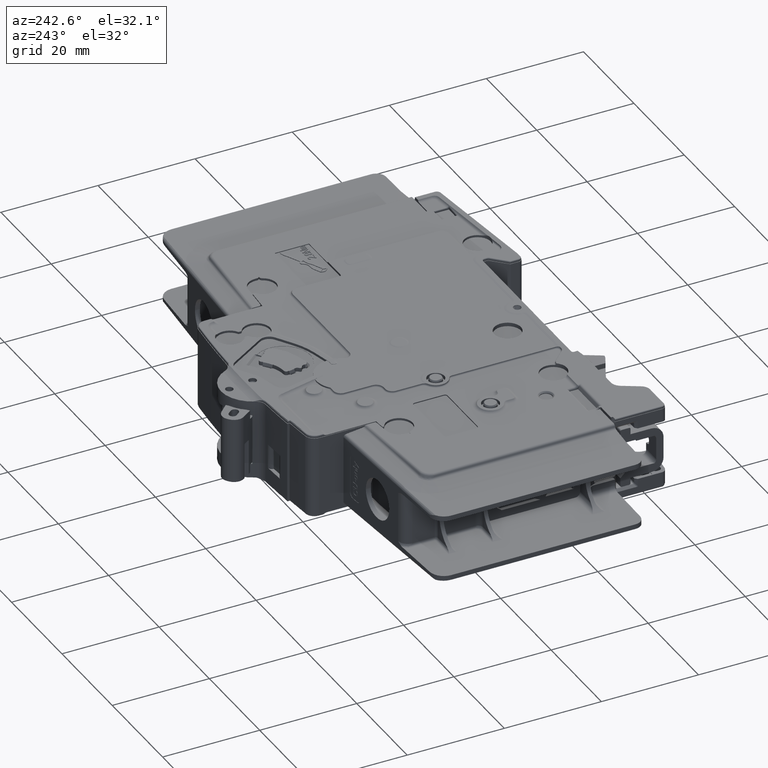
[diagram: clean part render]
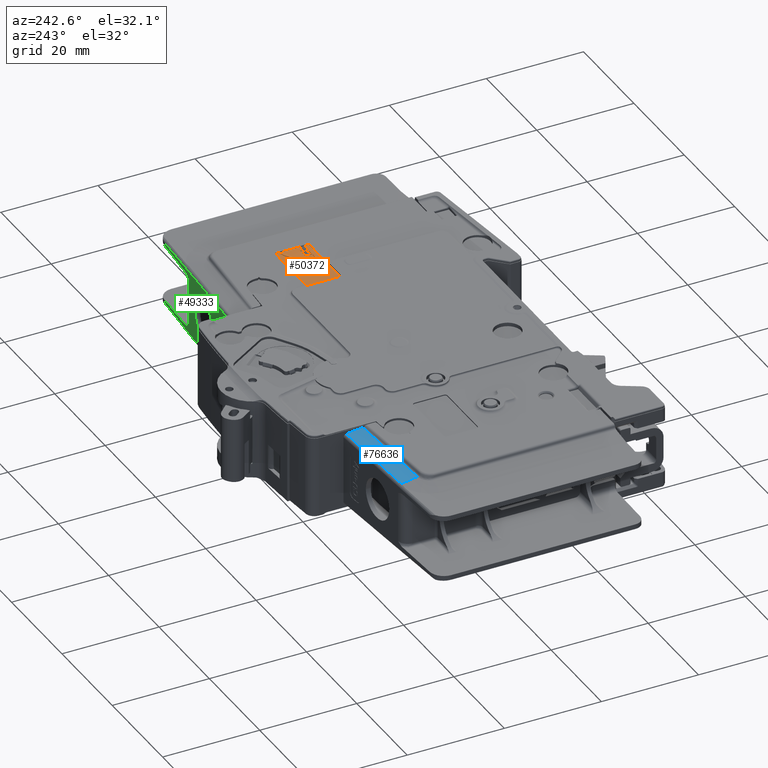
[diagram: same view with three faces highlighted in distinct colors, each labeled with its STEP entity id]
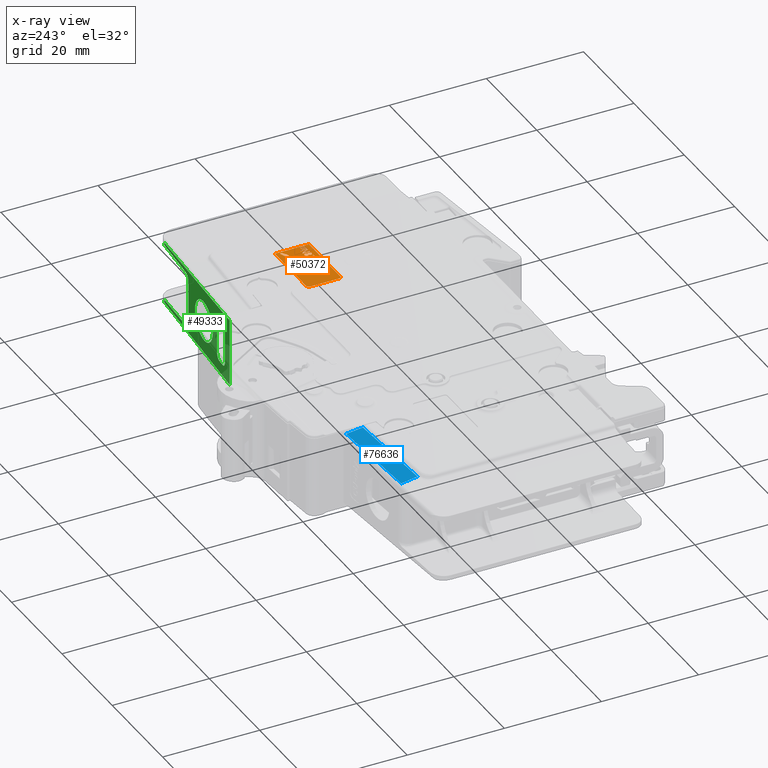
[diagram: x-ray of the same camera — body ghosted, the three highlighted faces saturated]
A machine part, auxiliary view with three faces highlighted in distinct colors.
The next image is the same camera in x-ray (body ghosted, the three faces saturated) — at least one of them is partly hidden behind the body in this view.
Their STEP definitions:

[orange] entity #50372 — the highlighted planar face has unit normal (0, 0, 1).
#2536=DIRECTION('',(1.E0,0.E0,0.E0));
#2537=VECTOR('',#2536,1.25E1);
#2538=CARTESIAN_POINT('',(2.5E1,-3.105E1,8.2E0));
#2539=LINE('',#2538,#2537);
#2540=CARTESIAN_POINT('',(2.5E1,-3.055E1,8.2E0));
#2541=DIRECTION('',(0.E0,0.E0,1.E0));
#2542=DIRECTION('',(-1.E0,0.E0,0.E0));
#2543=AXIS2_PLACEMENT_3D('',#2540,#2541,#2542);
#2545=DIRECTION('',(0.E0,-1.E0,0.E0));
#2546=VECTOR('',#2545,6.05E0);
#2547=CARTESIAN_POINT('',(2.45E1,-2.45E1,8.2E0));
#2548=LINE('',#2547,#2546);
#2549=CARTESIAN_POINT('',(2.5E1,-2.45E1,8.2E0));
#2550=DIRECTION('',(0.E0,0.E0,1.E0));
#2551=DIRECTION('',(0.E0,1.E0,0.E0));
#2552=AXIS2_PLACEMENT_3D('',#2549,#2550,#2551);
#2554=DIRECTION('',(-1.E0,0.E0,0.E0));
#2555=VECTOR('',#2554,1.25E1);
#2556=CARTESIAN_POINT('',(3.75E1,-2.4E1,8.2E0));
#2557=LINE('',#2556,#2555);
#2558=DIRECTION('',(0.E0,1.E0,0.E0));
#2559=VECTOR('',#2558,7.05E0);
#2560=CARTESIAN_POINT('',(3.75E1,-3.105E1,8.2E0));
#2561=LINE('',#2560,#2559);
#2562=DIRECTION('',(-9.061831399953E-1,-4.228854653311E-1,0.E0));
#2563=VECTOR('',#2562,4.204448120739E-1);
#2564=CARTESIAN_POINT('',(2.90320018E1,-2.79701512E1,8.2E0));
#2565=LINE('',#2564,#2563);
#2566=DIRECTION('',(-8.741572761215E-1,-4.856429311786E-1,0.E0));
#2567=VECTOR('',#2566,2.615090055811E-1);
#2568=CARTESIAN_POINT('',(2.86510018E1,-2.81479512E1,8.2E0));
#2569=LINE('',#2568,#2567);
#2570=DIRECTION('',(-9.119215051751E-1,-4.103646773288E-1,0.E0));
#2571=VECTOR('',#2570,5.570654898663E-1);
#2572=CARTESIAN_POINT('',(2.84224018E1,-2.82749512E1,8.2E0));
#2573=LINE('',#2572,#2571);
#2574=DIRECTION('',(-4.472135954999E-1,-8.944271909999E-1,0.E0));
#2575=VECTOR('',#2574,1.135922532570E-1);
#2576=CARTESIAN_POINT('',(2.79144018E1,-2.85035512E1,8.2E0));
#2577=LINE('',#2576,#2575);
#2578=DIRECTION('',(-1.961161351382E-1,-9.805806756909E-1,0.E0));
#2579=VECTOR('',#2578,2.590301912905E-1);
#2580=CARTESIAN_POINT('',(2.78636018E1,-2.86051512E1,8.2E0));
#2581=LINE('',#2580,#2579);
#2582=DIRECTION('',(-1.414213562373E-1,-9.899494936612E-1,0.E0));
#2583=VECTOR('',#2582,3.592102448428E-1);
#2584=CARTESIAN_POINT('',(2.78128018E1,-2.88591512E1,8.2E0));
#2585=LINE('',#2584,#2583);
#2586=DIRECTION('',(0.E0,-1.E0,0.E0));
#2587=VECTOR('',#2586,1.016E-1);
#2588=CARTESIAN_POINT('',(2.77620018E1,-2.92147512E1,8.2E0));
#2589=LINE('',#2588,#2587);
#2590=DIRECTION('',(3.939192985792E-1,-9.191450300181E-1,0.E0));
#2591=VECTOR('',#2590,1.934406368889E-1);
#2592=CARTESIAN_POINT('',(2.77620018E1,-2.93163512E1,8.2E0));
#2593=LINE('',#2592,#2591);
#2594=DIRECTION('',(4.472135954999E-1,-8.94427191E-1,0.E0));
#2595=VECTOR('',#2594,5.679612662851E-2);
#2596=CARTESIAN_POINT('',(2.78382018E1,-2.94941512E1,8.2E0));
#2597=LINE('',#2596,#2595);
#2598=DIRECTION('',(6.507913734560E-1,-7.592566023653E-1,0.E0));
#2599=VECTOR('',#2598,2.341764292152E-1);
#2600=CARTESIAN_POINT('',(2.78636018E1,-2.95449512E1,8.2E0));
#2601=LINE('',#2600,#2599);
#2602=DIRECTION('',(7.474093186837E-1,-6.643638388299E-1,0.E0));
#2603=VECTOR('',#2602,3.058565023013E-1);
#2604=CARTESIAN_POINT('',(2.80160018E1,-2.97227512E1,8.2E0));
#2605=LINE('',#2604,#2603);
#2606=DIRECTION('',(7.071067811865E-1,-7.071067811866E-1,0.E0));
#2607=VECTOR('',#2606,2.514471713899E-1);
#2608=CARTESIAN_POINT('',(2.82446018E1,-2.99259512E1,8.2E0));
#2609=LINE('',#2608,#2607);
#2610=DIRECTION('',(8.E-1,-6.E-1,0.E0));
#2611=VECTOR('',#2610,1.27E-1);
#2612=CARTESIAN_POINT('',(2.84224018E1,-3.01037512E1,8.2E0));
#2613=LINE('',#2612,#2611);
#2614=DIRECTION('',(9.805806756909E-1,1.961161351381E-1,0.E0));
#2615=VECTOR('',#2614,1.295150956453E-1);
#2616=CARTESIAN_POINT('',(2.85240018E1,-3.01799512E1,8.2E0));
#2617=LINE('',#2616,#2615);
#2618=DIRECTION('',(9.119215051751E-1,4.103646773288E-1,0.E0));
#2619=VECTOR('',#2618,5.570654898663E-1);
#2620=CARTESIAN_POINT('',(2.86510018E1,-3.01545512E1,8.2E0));
#2621=LINE('',#2620,#2619);
#2622=DIRECTION('',(8.944271909999E-1,4.472135955E-1,0.E0));
#2623=VECTOR('',#2622,2.839806331425E-1);
#2624=CARTESIAN_POINT('',(2.91590018E1,-2.99259512E1,8.2E0));
#2625=LINE('',#2624,#2623);
#2626=DIRECTION('',(9.138115486203E-1,4.061384660534E-1,0.E0));
#2627=VECTOR('',#2626,2.501609881656E-1);
#2628=CARTESIAN_POINT('',(2.94130018E1,-2.97989512E1,8.2E0));
#2629=LINE('',#2628,#2627);
#2630=DIRECTION('',(8.944271909999E-1,4.472135954999E-1,0.E0));
#2631=VECTOR('',#2630,3.407767597710E-1);
#2632=CARTESIAN_POINT('',(2.96416018E1,-2.96973512E1,8.2E0));
#2633=LINE('',#2632,#2631);
#2634=DIRECTION('',(8.741572761215E-1,4.856429311786E-1,0.E0));
#2635=VECTOR('',#2634,2.615090055811E-1);
#2636=CARTESIAN_POINT('',(2.99464018E1,-2.95449512E1,8.2E0));
#2637=LINE('',#2636,#2635);
#2638=DIRECTION('',(8.192319205191E-1,5.734623443633E-1,0.E0));
#2639=VECTOR('',#2638,3.100465126396E-1);
#2640=CARTESIAN_POINT('',(3.01750018E1,-2.94179512E1,8.2E0));
#2641=LINE('',#2640,#2639);
#2642=DIRECTION('',(7.682212795974E-1,6.401843996645E-1,0.E0));
#2643=VECTOR('',#2642,1.983803417680E-1);
#2644=CARTESIAN_POINT('',(3.04290018E1,-2.92401512E1,8.2E0));
#2645=LINE('',#2644,#2643);
#2646=DIRECTION('',(6.643638388299E-1,7.474093186837E-1,0.E0));
#2647=VECTOR('',#2646,3.058565023013E-1);
#2648=CARTESIAN_POINT('',(3.10640018E1,-2.86305512E1,8.2E0));
#2649=LINE('',#2648,#2647);
#2650=DIRECTION('',(7.682212795974E-1,6.401843996645E-1,0.E0));
#2651=VECTOR('',#2650,1.983803417680E-1);
#2652=CARTESIAN_POINT('',(3.12672018E1,-2.84019512E1,8.2E0));
#2653=LINE('',#2652,#2651);
#2654=DIRECTION('',(8.137334712067E-1,5.812381937191E-1,0.E0));
#2655=VECTOR('',#2654,2.184990617829E-1);
#2656=CARTESIAN_POINT('',(3.14196018E1,-2.82749512E1,8.2E0));
#2657=LINE('',#2656,#2655);
#2658=DIRECTION('',(8.944271909999E-1,4.472135955E-1,0.E0));
#2659=VECTOR('',#2658,1.703883798855E-1);
#2660=CARTESIAN_POINT('',(3.15974018E1,-2.81479512E1,8.2E0));
#2661=LINE('',#2660,#2659);
#2662=DIRECTION('',(9.486832980505E-1,3.162277660168E-1,0.E0));
#2663=VECTOR('',#2662,1.606437051366E-1);
#2664=CARTESIAN_POINT('',(3.17498018E1,-2.80717512E1,8.2E0));
#2665=LINE('',#2664,#2663);
#2666=DIRECTION('',(9.863939238321E-1,1.643989873054E-1,0.E0));
#2667=VECTOR('',#2666,1.545021682696E-1);
#2668=CARTESIAN_POINT('',(3.19022018E1,-2.80209512E1,8.2E0));
#2669=LINE('',#2668,#2667);
#2670=DIRECTION('',(9.899494936612E-1,1.414213562373E-1,0.E0));
#2671=VECTOR('',#2670,1.796051224214E-1);
#2672=CARTESIAN_POINT('',(3.20546018E1,-2.79955512E1,8.2E0));
#2673=LINE('',#2672,#2671);
#2674=DIRECTION('',(9.761870601839E-1,-2.169304578187E-1,0.E0));
#2675=VECTOR('',#2674,2.341764292152E-1);
#2676=CARTESIAN_POINT('',(3.22324018E1,-2.79701512E1,8.2E0));
#2677=LINE('',#2676,#2675);
#2678=DIRECTION('',(1.E0,0.E0,0.E0));
#2679=VECTOR('',#2678,7.62E-2);
#2680=CARTESIAN_POINT('',(3.24610018E1,-2.80209512E1,8.2E0));
#2681=LINE('',#2680,#2679);
#2682=DIRECTION('',(9.950371902100E-1,9.950371902102E-2,0.E0));
#2683=VECTOR('',#2682,2.552668407765E-1);
#2684=CARTESIAN_POINT('',(3.25372018E1,-2.80209512E1,8.2E0));
#2685=LINE('',#2684,#2683);
#2686=DIRECTION('',(9.363291775690E-1,3.511234415884E-1,0.E0));
#2687=VECTOR('',#2686,2.170176951311E-1);
#2688=CARTESIAN_POINT('',(3.27912018E1,-2.79955512E1,8.2E0));
#2689=LINE('',#2688,#2687);
#2690=DIRECTION('',(4.472135955E-1,8.944271909999E-1,0.E0));
#2691=VECTOR('',#2690,5.679612662849E-2);
#2692=CARTESIAN_POINT('',(3.29944018E1,-2.79193512E1,8.2E0));
#2693=LINE('',#2692,#2691);
#2694=DIRECTION('',(2.747211278974E-1,9.615239476408E-1,0.E0));
#2695=VECTOR('',#2694,1.849147911877E-1);
#2696=CARTESIAN_POINT('',(3.30198018E1,-2.78685512E1,8.2E0));
#2697=LINE('',#2696,#2695);
#2698=DIRECTION('',(9.950371902102E-2,9.950371902100E-1,0.E0));
#2699=VECTOR('',#2698,2.552668407765E-1);
#2700=CARTESIAN_POINT('',(3.30706018E1,-2.76907512E1,8.2E0));
#2701=LINE('',#2700,#2699);
#2702=DIRECTION('',(-3.162277660168E-1,9.486832980505E-1,0.E0));
#2703=VECTOR('',#2702,1.606437051366E-1);
#2704=CARTESIAN_POINT('',(3.30960018E1,-2.74367512E1,8.2E0));
#2705=LINE('',#2704,#2703);
#2706=DIRECTION('',(8.977894101426E-1,4.404249936548E-1,0.E0));
#2707=VECTOR('',#2706,2.998921539487E0);
#2708=CARTESIAN_POINT('',(3.30452018E1,-2.72843512E1,8.2E0));
#2709=LINE('',#2708,#2707);
#2710=DIRECTION('',(9.647638212377E-1,2.631174057921E-1,0.E0));
#2711=VECTOR('',#2710,5.792091159504E-1);
#2712=CARTESIAN_POINT('',(3.57376018E1,-2.59635512E1,8.2E0));
#2713=LINE('',#2712,#2711);
#2714=DIRECTION('',(8.181916968607E-1,5.749455167129E-1,0.E0));
#2715=VECTOR('',#2714,1.148630575947E0);
#2716=CARTESIAN_POINT('',(3.62964018E1,-2.58111512E1,8.2E0));
#2717=LINE('',#2716,#2715);
#2718=DIRECTION('',(-4.472135955E-1,8.944271909999E-1,1.042534027610E-14));
#2719=VECTOR('',#2718,3.407767597710E-1);
#2720=CARTESIAN_POINT('',(3.72362018E1,-2.51507512E1,8.2E0));
#2721=LINE('',#2720,#2719);
#2722=DIRECTION('',(-9.486832980505E-1,-3.162277660168E-1,0.E0));
#2723=VECTOR('',#2722,1.124505935956E0);
#2724=CARTESIAN_POINT('',(3.70838018E1,-2.48459512E1,8.2E0));
#2725=LINE('',#2724,#2723);
#2726=DIRECTION('',(-8.253072612498E-1,-5.646839155920E-1,0.E0));
#2727=VECTOR('',#2726,5.847519132076E-1);
#2728=CARTESIAN_POINT('',(3.60170018E1,-2.52015512E1,8.2E0));
#2729=LINE('',#2728,#2727);
#2730=DIRECTION('',(-9.011247017590E-1,-4.335599980161E-1,0.E0));
#2731=VECTOR('',#2730,2.987821768446E0);
#2732=CARTESIAN_POINT('',(3.55344018E1,-2.55317512E1,8.2E0));
#2733=LINE('',#2732,#2731);
#2734=DIRECTION('',(-8.E-1,6.E-1,0.E0));
#2735=VECTOR('',#2734,2.54E-1);
#2736=CARTESIAN_POINT('',(3.28420018E1,-2.68271512E1,8.2E0));
#2737=LINE('',#2736,#2735);
#2738=DIRECTION('',(-7.071067811865E-1,7.071067811866E-1,0.E0));
#2739=VECTOR('',#2738,1.436840979371E-1);
#2740=CARTESIAN_POINT('',(3.26388018E1,-2.66747512E1,8.2E0));
#2741=LINE('',#2740,#2739);
#2742=DIRECTION('',(-8.944271909999E-1,4.472135955E-1,0.E0));
#2743=VECTOR('',#2742,5.679612662850E-2);
#2744=CARTESIAN_POINT('',(3.25372018E1,-2.65731512E1,8.2E0));
#2745=LINE('',#2744,#2743);
#2746=DIRECTION('',(-9.863939238321E-1,-1.643989873054E-1,0.E0));
#2747=VECTOR('',#2746,1.545021682696E-1);
#2748=CARTESIAN_POINT('',(3.24864018E1,-2.65477512E1,8.2E0));
#2749=LINE('',#2748,#2747);
#2750=DIRECTION('',(-1.E0,0.E0,0.E0));
#2751=VECTOR('',#2750,1.27E-1);
#2752=CARTESIAN_POINT('',(3.23340018E1,-2.65731512E1,8.2E0));
#2753=LINE('',#2752,#2751);
#2754=DIRECTION('',(-9.138115486203E-1,-4.061384660534E-1,0.E0));
#2755=VECTOR('',#2754,2.501609881656E-1);
#2756=CARTESIAN_POINT('',(3.22070018E1,-2.65731512E1,8.2E0));
#2757=LINE('',#2756,#2755);
#2758=DIRECTION('',(-3.939192985792E-1,-9.191450300181E-1,0.E0));
#2759=VECTOR('',#2758,1.934406368889E-1);
#2760=CARTESIAN_POINT('',(3.19784018E1,-2.66747512E1,8.2E0));
#2761=LINE('',#2760,#2759);
#2762=DIRECTION('',(-6.246950475544E-1,-7.808688094430E-1,0.E0));
#2763=VECTOR('',#2762,1.626393556308E-1);
#2764=CARTESIAN_POINT('',(3.19022018E1,-2.68525512E1,8.2E0));
#2765=LINE('',#2764,#2763);
#2766=DIRECTION('',(-5.547001962252E-1,-8.320502943378E-1,0.E0));
#2767=VECTOR('',#2766,1.831620047936E-1);
#2768=CARTESIAN_POINT('',(3.18006018E1,-2.69795512E1,8.2E0));
#2769=LINE('',#2768,#2767);
#2770=DIRECTION('',(-7.071067811866E-1,-7.071067811865E-1,0.E0));
#2771=VECTOR('',#2770,2.514471713899E-1);
#2772=CARTESIAN_POINT('',(3.16990018E1,-2.71319512E1,8.2E0));
#2773=LINE('',#2772,#2771);
#2774=DIRECTION('',(-8.320502943378E-1,-5.547001962252E-1,0.E0));
#2775=VECTOR('',#2774,1.831620047936E-1);
#2776=CARTESIAN_POINT('',(3.15212018E1,-2.73097512E1,8.2E0));
#2777=LINE('',#2776,#2775);
#2778=DIRECTION('',(-8.944271909999E-1,-4.472135954999E-1,0.E0));
#2779=VECTOR('',#2778,1.703883798855E-1);
#2780=CARTESIAN_POINT('',(3.13688018E1,-2.74113512E1,8.2E0));
#2781=LINE('',#2780,#2779);
#2782=DIRECTION('',(-9.486832980505E-1,-3.162277660170E-1,0.E0));
#2783=VECTOR('',#2782,8.032185256828E-2);
#2784=CARTESIAN_POINT('',(3.12164018E1,-2.74875512E1,8.2E0));
#2785=LINE('',#2784,#2783);
#2786=DIRECTION('',(-9.615239476408E-1,-2.747211278974E-1,0.E0));
#2787=VECTOR('',#2786,1.849147911877E-1);
#2788=CARTESIAN_POINT('',(3.11402018E1,-2.75129512E1,8.2E0));
#2789=LINE('',#2788,#2787);
#2790=DIRECTION('',(-9.863939238321E-1,-1.643989873054E-1,0.E0));
#2791=VECTOR('',#2790,1.545021682696E-1);
#2792=CARTESIAN_POINT('',(3.09624018E1,-2.75637512E1,8.2E0));
#2793=LINE('',#2792,#2791);
#2794=DIRECTION('',(-9.980525784829E-1,-6.237828615517E-2,0.E0));
#2795=VECTOR('',#2794,4.071929763638E-1);
#2796=CARTESIAN_POINT('',(3.08100018E1,-2.75891512E1,8.2E0));
#2797=LINE('',#2796,#2795);
#2798=DIRECTION('',(-1.E0,0.E0,0.E0));
#2799=VECTOR('',#2798,1.524E-1);
#2800=CARTESIAN_POINT('',(3.04036018E1,-2.76145512E1,8.2E0));
#2801=LINE('',#2800,#2799);
#2802=DIRECTION('',(-9.863939238321E-1,-1.643989873054E-1,0.E0));
#2803=VECTOR('',#2802,3.090043365392E-1);
#2804=CARTESIAN_POINT('',(3.02512018E1,-2.76145512E1,8.2E0));
#2805=LINE('',#2804,#2803);
#2806=DIRECTION('',(-9.838699100999E-1,-1.788854382E-1,0.E0));
#2807=VECTOR('',#2806,2.839806331425E-1);
#2808=CARTESIAN_POINT('',(2.99464018E1,-2.76653512E1,8.2E0));
#2809=LINE('',#2808,#2807);
#2810=DIRECTION('',(-9.079593845005E-1,-4.190581774617E-1,0.E0));
#2811=VECTOR('',#2810,3.636726550074E-1);
#2812=CARTESIAN_POINT('',(2.93622018E1,-2.78177512E1,8.2E0));
#2813=LINE('',#2812,#2811);
#2814=DIRECTION('',(0.E0,-1.E0,0.E0));
#2815=VECTOR('',#2814,1.595744714141E-1);
#2816=CARTESIAN_POINT('',(3.27E1,-2.994042552859E1,8.2E0));
#2817=LINE('',#2816,#2815);
#2818=DIRECTION('',(1.E0,0.E0,0.E0));
#2819=VECTOR('',#2818,9.E-1);
#2820=CARTESIAN_POINT('',(3.27E1,-3.01E1,8.2E0));
#2821=LINE('',#2820,#2819);
#2822=DIRECTION('',(0.E0,1.E0,0.E0));
#2823=VECTOR('',#2822,1.595744714141E-1);
#2824=CARTESIAN_POINT('',(3.36E1,-3.01E1,8.2E0));
#2825=LINE('',#2824,#2823);
#2826=DIRECTION('',(-1.E0,0.E0,0.E0));
#2827=VECTOR('',#2826,6.999999940395E-1);
#2828=CARTESIAN_POINT('',(3.36E1,-2.994042552859E1,8.2E0));
#2829=LINE('',#2828,#2827);
#2830=DIRECTION('',(6.648905181809E-1,7.469408268619E-1,0.E0));
#2831=VECTOR('',#2830,9.400043720724E-1);
#2832=CARTESIAN_POINT('',(3.290000000596E1,-2.994042552859E1,8.2E0));
#2833=LINE('',#2832,#2831);
#2834=DIRECTION('',(4.629027827006E-1,8.864090555540E-1,0.E0));
#2835=VECTOR('',#2834,1.080140921818E-1);
#2836=CARTESIAN_POINT('',(3.3525E1,-2.923829788566E1,8.2E0));
#2837=LINE('',#2836,#2835);
#2838=DIRECTION('',(1.921826769043E-1,9.813591690599E-1,0.E0));
#2839=VECTOR('',#2838,1.300844413286E-1);
#2840=CARTESIAN_POINT('',(3.357500002384E1,-2.914255321622E1,8.2E0));
#2841=LINE('',#2840,#2839);
#2842=DIRECTION('',(0.E0,1.E0,0.E0));
#2843=VECTOR('',#2842,6.382986903191E-2);
#2844=CARTESIAN_POINT('',(3.36E1,-2.901489365697E1,8.2E0));
#2845=LINE('',#2844,#2843);
#2846=DIRECTION('',(-1.921826769043E-1,9.813591690599E-1,0.E0));
#2847=VECTOR('',#2846,1.300844413286E-1);
#2848=CARTESIAN_POINT('',(3.36E1,-2.895106378794E1,8.2E0));
#2849=LINE('',#2848,#2847);
#2850=DIRECTION('',(-6.166622030510E-1,7.872278750960E-1,0.E0));
#2851=VECTOR('',#2850,1.621634132738E-1);
#2852=CARTESIAN_POINT('',(3.357500002384E1,-2.882340422869E1,8.2E0));
#2853=LINE('',#2852,#2851);
#2854=DIRECTION('',(-8.429221804892E-1,5.380354984937E-1,0.E0));
#2855=VECTOR('',#2854,1.186348852513E-1);
#2856=CARTESIAN_POINT('',(3.347499997616E1,-2.869574466944E1,8.2E0));
#2857=LINE('',#2856,#2855);
#2858=DIRECTION('',(-9.781059340346E-1,2.081076207309E-1,0.E0));
#2859=VECTOR('',#2858,1.533576218900E-1);
#2860=CARTESIAN_POINT('',(3.3375E1,-2.863191488981E1,8.2E0));
#2861=LINE('',#2860,#2859);
#2862=DIRECTION('',(-1.E0,0.E0,0.E0));
#2863=VECTOR('',#2862,1.000000119209E-1);
#2864=CARTESIAN_POINT('',(3.3225E1,-2.86E1,8.2E0));
#2865=LINE('',#2864,#2863);
#2866=DIRECTION('',(-9.837740858106E-1,-1.794116721050E-1,0.E0));
#2867=VECTOR('',#2866,1.778863628994E-1);
#2868=CARTESIAN_POINT('',(3.312499998808E1,-2.86E1,8.2E0));
#2869=LINE('',#2868,#2867);
#2870=DIRECTION('',(-8.429222241218E-1,-5.380354301360E-1,0.E0));
#2871=VECTOR('',#2870,1.186349003240E-1);
#2872=CARTESIAN_POINT('',(3.294999999404E1,-2.863191488981E1,8.2E0));
#2873=LINE('',#2872,#2871);
#2874=DIRECTION('',(-6.166620151270E-1,-7.872280223033E-1,0.E0));
#2875=VECTOR('',#2874,1.621633829502E-1);
#2876=CARTESIAN_POINT('',(3.285E1,-2.869574466944E1,8.2E0));
#2877=LINE('',#2876,#2875);
#2878=DIRECTION('',(-1.921828589309E-1,-9.813591334130E-1,0.E0));
#2879=VECTOR('',#2878,1.300844460538E-1);
#2880=CARTESIAN_POINT('',(3.275000000149E1,-2.882340422869E1,8.2E0));
#2881=LINE('',#2880,#2879);
#2882=DIRECTION('',(1.E0,0.E0,0.E0));
#2883=VECTOR('',#2882,1.249999992549E-1);
#2884=CARTESIAN_POINT('',(3.272500000075E1,-2.895106378794E1,8.2E0));
#2885=LINE('',#2884,#2883);
#2886=DIRECTION('',(4.629026526271E-1,8.864091234813E-1,0.E0));
#2887=VECTOR('',#2886,1.080140839045E-1);
#2888=CARTESIAN_POINT('',(3.285E1,-2.895106378794E1,8.2E0));
#2889=LINE('',#2888,#2887);
#2890=DIRECTION('',(7.615394278297E-1,6.481185847210E-1,0.E0));
#2891=VECTOR('',#2890,9.848472352080E-2);
#2892=CARTESIAN_POINT('',(3.290000000596E1,-2.885531911850E1,8.2E0));
#2893=LINE('',#2892,#2891);
#2894=DIRECTION('',(9.689177205206E-1,2.473832065059E-1,0.E0));
#2895=VECTOR('',#2894,1.290099286174E-1);
#2896=CARTESIAN_POINT('',(3.297500000596E1,-2.879148933887E1,8.2E0));
#2897=LINE('',#2896,#2895);
#2898=DIRECTION('',(1.E0,0.E0,0.E0));
#2899=VECTOR('',#2898,9.999997615814E-2);
#2900=CARTESIAN_POINT('',(3.310000001192E1,-2.875957444906E1,8.2E0));
#2901=LINE('',#2900,#2899);
#2902=DIRECTION('',(9.689177120382E-1,-2.473832397287E-1,0.E0));
#2903=VECTOR('',#2902,1.290099112918E-1);
#2904=CARTESIAN_POINT('',(3.319999998808E1,-2.875957444906E1,8.2E0));
#2905=LINE('',#2904,#2903);
#2906=DIRECTION('',(7.615394278298E-1,-6.481185847210E-1,0.E0));
#2907=VECTOR('',#2906,9.848472352080E-2);
#2908=CARTESIAN_POINT('',(3.332499997616E1,-2.879148933887E1,8.2E0));
#2909=LINE('',#2908,#2907);
#2910=DIRECTION('',(4.629027827007E-1,-8.864090555539E-1,0.E0));
#2911=VECTOR('',#2910,1.080140921818E-1);
#2912=CARTESIAN_POINT('',(3.339999997616E1,-2.885531911850E1,8.2E0));
#2913=LINE('',#2912,#2911);
#2914=DIRECTION('',(0.E0,-1.E0,0.E0));
#2915=VECTOR('',#2914,6.382986903191E-2);
#2916=CARTESIAN_POINT('',(3.345E1,-2.895106378794E1,8.2E0));
#2917=LINE('',#2916,#2915);
#2918=DIRECTION('',(-3.646920866794E-1,-9.311281769517E-1,0.E0));
#2919=VECTOR('',#2918,1.371020257037E-1);
#2920=CARTESIAN_POINT('',(3.345E1,-2.901489365697E1,8.2E0));
#2921=LINE('',#2920,#2919);
#2922=DIRECTION('',(-6.594974406342E-1,-7.517068084014E-1,0.E0));
#2923=VECTOR('',#2922,1.061414242161E0);
#2924=CARTESIAN_POINT('',(3.339999997616E1,-2.914255321622E1,8.2E0));
#2925=LINE('',#2924,#2923);
#2926=DIRECTION('',(0.E0,1.E0,0.E0));
#2927=VECTOR('',#2926,1.595744714141E-1);
#2928=CARTESIAN_POINT('',(3.392500004768E1,-3.01E1,8.2E0));
#2929=LINE('',#2928,#2927);
#2930=DIRECTION('',(-1.E0,0.E0,0.E0));
#2931=VECTOR('',#2930,1.250000238419E-1);
#2932=CARTESIAN_POINT('',(3.392500004768E1,-2.994042552859E1,8.2E0));
#2933=LINE('',#2932,#2931);
#2934=DIRECTION('',(0.E0,-1.E0,0.E0));
#2935=VECTOR('',#2934,1.595744714141E-1);
#2936=CARTESIAN_POINT('',(3.380000002384E1,-2.994042552859E1,8.2E0));
#2937=LINE('',#2936,#2935);
#2938=DIRECTION('',(1.E0,0.E0,0.E0));
#2939=VECTOR('',#2938,1.250000238419E-1);
#2940=CARTESIAN_POINT('',(3.380000002384E1,-3.01E1,8.2E0));
#2941=LINE('',#2940,#2939);
#2942=DIRECTION('',(-8.429220059588E-1,-5.380357719245E-1,0.E0));
#2943=VECTOR('',#2942,5.931741248042E-2);
#2944=CARTESIAN_POINT('',(3.432499995232E1,-2.933404255509E1,8.2E0));
#2945=LINE('',#2944,#2943);
#2946=DIRECTION('',(-7.223082161079E-1,-6.915712840648E-1,0.E0));
#2947=VECTOR('',#2946,1.384451200383E-1);
#2948=CARTESIAN_POINT('',(3.4275E1,-2.936595744491E1,8.2E0));
#2949=LINE('',#2948,#2947);
#2950=DIRECTION('',(-2.989990665180E-1,-9.542534035681E-1,0.E0));
#2951=VECTOR('',#2950,1.672244428672E-1);
#2952=CARTESIAN_POINT('',(3.417499995232E1,-2.946170211434E1,8.2E0));
#2953=LINE('',#2952,#2951);
#2954=DIRECTION('',(0.E0,-1.E0,0.E0));
#2955=VECTOR('',#2954,9.574466943741E-2);
#2956=CARTESIAN_POINT('',(3.4125E1,-2.962127660811E1,8.2E0));
#2957=LINE('',#2956,#2955);
#2958=DIRECTION('',(2.989991046548E-1,-9.542533916186E-1,0.E0));
#2959=VECTOR('',#2958,1.672244215380E-1);
#2960=CARTESIAN_POINT('',(3.4125E1,-2.971702127755E1,8.2E0));
#2961=LINE('',#2960,#2959);
#2962=DIRECTION('',(6.166619762135E-1,-7.872280527855E-1,0.E0));
#2963=VECTOR('',#2962,1.216225466998E-1);
#2964=CARTESIAN_POINT('',(3.417499995232E1,-2.987659574896E1,8.2E0));
#2965=LINE('',#2964,#2963);
#2966=DIRECTION('',(7.938783792516E-1,-6.080765732676E-1,0.E0));
#2967=VECTOR('',#2966,1.574549687136E-1);
#2968=CARTESIAN_POINT('',(3.424999995232E1,-2.997234042957E1,8.2E0));
#2969=LINE('',#2968,#2967);
#2970=DIRECTION('',(9.689176898823E-1,-2.473833265058E-1,0.E0));
#2971=VECTOR('',#2970,1.290098773317E-1);
#2972=CARTESIAN_POINT('',(3.437500004768E1,-3.006808510739E1,8.2E0));
#2973=LINE('',#2972,#2971);
#2974=DIRECTION('',(1.E0,0.E0,0.E0));
#2975=VECTOR('',#2974,1.5E-1);
#2976=CARTESIAN_POINT('',(3.45E1,-3.01E1,8.2E0));
#2977=LINE('',#2976,#2975);
#2978=DIRECTION('',(9.689176898823E-1,2.473833265058E-1,0.E0));
#2979=VECTOR('',#2978,1.290098773317E-1);
#2980=CARTESIAN_POINT('',(3.465E1,-3.01E1,8.2E0));
#2981=LINE('',#2980,#2979);
#2982=DIRECTION('',(7.938783792516E-1,6.080765732676E-1,0.E0));
#2983=VECTOR('',#2982,1.574549687136E-1);
#2984=CARTESIAN_POINT('',(3.477499995232E1,-3.006808510739E1,8.2E0));
#2985=LINE('',#2984,#2983);
#2986=DIRECTION('',(6.166619762135E-1,7.872280527855E-1,0.E0));
#2987=VECTOR('',#2986,1.216225466998E-1);
#2988=CARTESIAN_POINT('',(3.490000004768E1,-2.997234042957E1,8.2E0));
#2989=LINE('',#2988,#2987);
#2990=DIRECTION('',(2.989991046548E-1,9.542533916186E-1,0.E0));
#2991=VECTOR('',#2990,1.672244215380E-1);
#2992=CARTESIAN_POINT('',(3.497500004768E1,-2.987659574896E1,8.2E0));
#2993=LINE('',#2992,#2991);
#2994=DIRECTION('',(0.E0,1.E0,0.E0));
#2995=VECTOR('',#2994,9.574466943741E-2);
#2996=CARTESIAN_POINT('',(3.5025E1,-2.971702127755E1,8.2E0));
#2997=LINE('',#2996,#2995);
#2998=DIRECTION('',(-2.989990665180E-1,9.542534035681E-1,0.E0));
#2999=VECTOR('',#2998,1.672244428672E-1);
#3000=CARTESIAN_POINT('',(3.5025E1,-2.962127660811E1,8.2E0));
#3001=LINE('',#3000,#2999);
#3002=DIRECTION('',(-7.223082161079E-1,6.915712840648E-1,0.E0));
#3003=VECTOR('',#3002,1.384451200383E-1);
#3004=CARTESIAN_POINT('',(3.497500004768E1,-2.946170211434E1,8.2E0));
#3005=LINE('',#3004,#3003);
#3006=DIRECTION('',(-8.429220059588E-1,5.380357719245E-1,0.E0));
#3007=VECTOR('',#3006,5.931741248042E-2);
#3008=CARTESIAN_POINT('',(3.4875E1,-2.936595744491E1,8.2E0));
#3009=LINE('',#3008,#3007);
#3010=DIRECTION('',(8.429220059588E-1,5.380357719245E-1,0.E0));
#3011=VECTOR('',#3010,5.931741248042E-2);
#3012=CARTESIAN_POINT('',(3.482500004768E1,-2.933404255509E1,8.2E0));
#3013=LINE('',#3012,#3011);
#3014=DIRECTION('',(6.166620208217E-1,7.872280178424E-1,0.E0));
#3015=VECTOR('',#3014,1.216225379018E-1);
#3016=CARTESIAN_POINT('',(3.4875E1,-2.930212766528E1,8.2E0));
#3017=LINE('',#3016,#3015);
#3018=DIRECTION('',(3.646916343690E-1,9.311283541066E-1,0.E0));
#3019=VECTOR('',#3018,1.371019996189E-1);
#3020=CARTESIAN_POINT('',(3.495E1,-2.920638299584E1,8.2E0));
#3021=LINE('',#3020,#3019);
#3022=DIRECTION('',(0.E0,1.E0,0.E0));
#3023=VECTOR('',#3022,9.574466943741E-2);
#3024=CARTESIAN_POINT('',(3.499999995232E1,-2.907872343659E1,8.2E0));
#3025=LINE('',#3024,#3023);
#3026=DIRECTION('',(-2.989989902442E-1,9.542534274672E-1,0.E0));
#3027=VECTOR('',#3026,1.672244855257E-1);
#3028=CARTESIAN_POINT('',(3.499999995232E1,-2.898297876716E1,8.2E0));
#3029=LINE('',#3028,#3027);
#3030=DIRECTION('',(-6.166620208217E-1,7.872280178424E-1,0.E0));
#3031=VECTOR('',#3030,1.216225379018E-1);
#3032=CARTESIAN_POINT('',(3.495E1,-2.882340422869E1,8.2E0));
#3033=LINE('',#3032,#3031);
#3034=DIRECTION('',(-7.938780690170E-1,6.080769782961E-1,0.E0));
#3035=VECTOR('',#3034,1.574548500515E-1);
#3036=CARTESIAN_POINT('',(3.4875E1,-2.872765955925E1,8.2E0));
#3037=LINE('',#3036,#3035);
#3038=DIRECTION('',(-9.689177629325E-1,2.473830403924E-1,0.E0));
#3039=VECTOR('',#3038,1.290100152454E-1);
#3040=CARTESIAN_POINT('',(3.475000004768E1,-2.863191488981E1,8.2E0));
#3041=LINE('',#3040,#3039);
#3042=DIRECTION('',(-1.E0,0.E0,0.E0));
#3043=VECTOR('',#3042,9.999990463257E-2);
#3044=CARTESIAN_POINT('',(3.462499995232E1,-2.86E1,8.2E0));
#3045=LINE('',#3044,#3043);
#3046=DIRECTION('',(-9.689177629325E-1,-2.473830403924E-1,0.E0));
#3047=VECTOR('',#3046,1.290100152454E-1);
#3048=CARTESIAN_POINT('',(3.452500004768E1,-2.86E1,8.2E0));
#3049=LINE('',#3048,#3047);
#3050=DIRECTION('',(-7.938780690170E-1,-6.080769782962E-1,0.E0));
#3051=VECTOR('',#3050,1.574548500515E-1);
#3052=CARTESIAN_POINT('',(3.439999995232E1,-2.863191488981E1,8.2E0));
#3053=LINE('',#3052,#3051);
#3054=DIRECTION('',(-6.166620208218E-1,-7.872280178424E-1,0.E0));
#3055=VECTOR('',#3054,1.216225379018E-1);
#3056=CARTESIAN_POINT('',(3.4275E1,-2.872765955925E1,8.2E0));
#3057=LINE('',#3056,#3055);
#3058=DIRECTION('',(-2.989989902442E-1,-9.542534274672E-1,0.E0));
#3059=VECTOR('',#3058,1.672244855257E-1);
#3060=CARTESIAN_POINT('',(3.42E1,-2.882340422869E1,8.2E0));
#3061=LINE('',#3060,#3059);
#3062=DIRECTION('',(0.E0,-1.E0,0.E0));
#3063=VECTOR('',#3062,9.574466943741E-2);
#3064=CARTESIAN_POINT('',(3.415000004768E1,-2.898297876716E1,8.2E0));
#3065=LINE('',#3064,#3063);
#3066=DIRECTION('',(3.646916343690E-1,-9.311283541066E-1,0.E0));
#3067=VECTOR('',#3066,1.371019996189E-1);
#3068=CARTESIAN_POINT('',(3.415000004768E1,-2.907872343659E1,8.2E0));
#3069=LINE('',#3068,#3067);
#3070=DIRECTION('',(6.166620208218E-1,-7.872280178424E-1,0.E0));
#3071=VECTOR('',#3070,1.216225379018E-1);
#3072=CARTESIAN_POINT('',(3.42E1,-2.920638299584E1,8.2E0));
#3073=LINE('',#3072,#3071);
#3074=DIRECTION('',(8.429220059588E-1,-5.380357719245E-1,0.E0));
#3075=VECTOR('',#3074,5.931741248042E-2);
#3076=CARTESIAN_POINT('',(3.4275E1,-2.930212766528E1,8.2E0));
#3077=LINE('',#3076,#3075);
#3078=DIRECTION('',(0.E0,1.E0,0.E0));
#3079=VECTOR('',#3078,1.308510661125E0);
#3080=CARTESIAN_POINT('',(3.537500009537E1,-3.01E1,8.2E0));
#3081=LINE('',#3080,#3079);
#3082=DIRECTION('',(4.310011034718E-1,-9.023513998471E-1,0.E0));
#3083=VECTOR('',#3082,1.450112075348E0);
#3084=CARTESIAN_POINT('',(3.537500009537E1,-2.879148933887E1,8.2E0));
#3085=LINE('',#3084,#3083);
#3086=DIRECTION('',(1.E0,0.E0,0.E0));
#3087=VECTOR('',#3086,2.25E-1);
#3088=CARTESIAN_POINT('',(3.6E1,-3.01E1,8.2E0));
#3089=LINE('',#3088,#3087);
#3090=DIRECTION('',(0.E0,1.E0,0.E0));
#3091=VECTOR('',#3090,1.5E0);
#3092=CARTESIAN_POINT('',(3.6225E1,-3.01E1,8.2E0));
#3093=LINE('',#3092,#3091);
#3094=DIRECTION('',(-1.E0,0.E0,0.E0));
#3095=VECTOR('',#3094,1.5E-1);
#3096=CARTESIAN_POINT('',(3.6225E1,-2.86E1,8.2E0));
#3097=LINE('',#3096,#3095);
#3098=DIRECTION('',(0.E0,-1.E0,0.E0));
#3099=VECTOR('',#3098,1.276595748961E0);
#3100=CARTESIAN_POINT('',(3.6075E1,-2.86E1,8.2E0));
#3101=LINE('',#3100,#3099);
#3102=DIRECTION('',(-4.397133982300E-1,8.981381449516E-1,0.E0));
#3103=VECTOR('',#3102,1.421380169784E0);
#3104=CARTESIAN_POINT('',(3.6075E1,-2.987659574896E1,8.2E0));
#3105=LINE('',#3104,#3103);
#3106=DIRECTION('',(-1.E0,0.E0,0.E0));
#3107=VECTOR('',#3106,2.25E-1);
#3108=CARTESIAN_POINT('',(3.545000009537E1,-2.86E1,8.2E0));
#3109=LINE('',#3108,#3107);
#3110=DIRECTION('',(0.E0,-1.E0,0.E0));
#3111=VECTOR('',#3110,1.5E0);
#3112=CARTESIAN_POINT('',(3.522500009537E1,-2.86E1,8.2E0));
#3113=LINE('',#3112,#3111);
#3114=DIRECTION('',(1.E0,0.E0,0.E0));
#3115=VECTOR('',#3114,1.5E-1);
#3116=CARTESIAN_POINT('',(3.522500009537E1,-3.01E1,8.2E0));
#3117=LINE('',#3116,#3115);
#3118=DIRECTION('',(0.E0,1.E0,0.E0));
#3119=VECTOR('',#3118,7.978723347187E-1);
#3120=CARTESIAN_POINT('',(3.654999990463E1,-3.01E1,8.2E0));
#3121=LINE('',#3120,#3119);
#3122=DIRECTION('',(6.166627497384E-1,7.872274468571E-1,4.381644015082E-14));
#3123=VECTOR('',#3122,8.108175074405E-2);
#3124=CARTESIAN_POINT('',(3.654999990463E1,-2.930212766528E1,8.2E0));
#3125=LINE('',#3124,#3123);
#3126=DIRECTION('',(9.201546524459E-1,3.915551245765E-1,4.358728027141E-14));
#3127=VECTOR('',#3126,8.150803758982E-2);
#3128=CARTESIAN_POINT('',(3.66E1,-2.923829788566E1,8.2E0));
#3129=LINE('',#3128,#3127);
#3130=DIRECTION('',(1.E0,0.E0,7.105413805101E-14));
#3131=VECTOR('',#3130,5.000009536742E-2);
#3132=CARTESIAN_POINT('',(3.6675E1,-2.920638299584E1,8.2E0));
#3133=LINE('',#3132,#3131);
#3134=DIRECTION('',(8.429213078345E-1,-5.380368656500E-1,5.989338968505E-14));
#3135=VECTOR('',#3134,5.931729189953E-2);
#3136=CARTESIAN_POINT('',(3.672500009537E1,-2.920638299584E1,8.2E0));
#3137=LINE('',#3136,#3135);
#3138=DIRECTION('',(6.166649364789E-1,-7.872257339019E-1,8.763268961827E-14));
#3139=VECTOR('',#3138,4.054096358649E-2);
#3140=CARTESIAN_POINT('',(3.677499990463E1,-2.923829788566E1,8.2E0));
#3141=LINE('',#3140,#3139);
#3142=DIRECTION('',(3.646907297474E-1,-9.311287084159E-1,5.182586746423E-14));
#3143=VECTOR('',#3142,6.855097372471E-2);
#3144=CARTESIAN_POINT('',(3.680000009537E1,-2.927021277547E1,8.2E0));
#3145=LINE('',#3144,#3143);
#3146=DIRECTION('',(0.E0,-1.E0,0.E0));
#3147=VECTOR('',#3146,7.659574449062E-1);
#3148=CARTESIAN_POINT('',(3.6825E1,-2.933404255509E1,8.2E0));
#3149=LINE('',#3148,#3147);
#3150=DIRECTION('',(1.E0,0.E0,2.842168774638E-14));
#3151=VECTOR('',#3150,1.250000953674E-1);
#3152=CARTESIAN_POINT('',(3.6825E1,-3.01E1,8.2E0));
#3153=LINE('',#3152,#3151);
#3154=DIRECTION('',(0.E0,1.E0,0.E0));
#3155=VECTOR('',#3154,7.659574449062E-1);
#3156=CARTESIAN_POINT('',(3.695000009537E1,-3.01E1,8.2E0));
#3157=LINE('',#3156,#3155);
#3158=DIRECTION('',(3.646907297474E-1,9.311287084159E-1,5.182586746423E-14));
#3159=VECTOR('',#3158,6.855097372471E-2);
#3160=CARTESIAN_POINT('',(3.695000009537E1,-2.933404255509E1,8.2E0));
#3161=LINE('',#3160,#3159);
#3162=DIRECTION('',(6.166605629837E-1,7.872291598134E-1,8.763307098516E-14));
#3163=VECTOR('',#3162,4.054078715788E-2);
#3164=CARTESIAN_POINT('',(3.6975E1,-2.927021277547E1,8.2E0));
#3165=LINE('',#3164,#3163);
#3166=DIRECTION('',(8.429227040789E-1,5.380346782024E-1,5.989314618194E-14));
#3167=VECTOR('',#3166,5.931753306143E-2);
#3168=CARTESIAN_POINT('',(3.699999990463E1,-2.923829788566E1,8.2E0));
#3169=LINE('',#3168,#3167);
#3170=DIRECTION('',(1.E0,0.E0,4.736951571734E-14));
#3171=VECTOR('',#3170,7.5E-2);
#3172=CARTESIAN_POINT('',(3.705E1,-2.920638299584E1,8.2E0));
#3173=LINE('',#3172,#3171);
#3174=DIRECTION('',(8.429227040789E-1,-5.380346782024E-1,5.989314618193E-14));
#3175=VECTOR('',#3174,5.931753306144E-2);
#3176=CARTESIAN_POINT('',(3.7125E1,-2.920638299584E1,8.2E0));
#3177=LINE('',#3176,#3175);
#3178=DIRECTION('',(6.166605629834E-1,-7.872291598137E-1,8.763307098519E-14));
#3179=VECTOR('',#3178,4.054078715786E-2);
#3180=CARTESIAN_POINT('',(3.717500009537E1,-2.923829788566E1,8.2E0));
#3181=LINE('',#3180,#3179);
#3182=DIRECTION('',(3.646907297476E-1,-9.311287084159E-1,5.182586746423E-14));
#3183=VECTOR('',#3182,6.855097372471E-2);
#3184=CARTESIAN_POINT('',(3.72E1,-2.927021277547E1,8.2E0));
#3185=LINE('',#3184,#3183);
#3186=DIRECTION('',(0.E0,-1.E0,0.E0));
#3187=VECTOR('',#3186,7.659574449062E-1);
#3188=CARTESIAN_POINT('',(3.722499990463E1,-2.933404255509E1,8.2E0));
#3189=LINE('',#3188,#3187);
#3190=DIRECTION('',(1.E0,0.E0,2.842168774638E-14));
#3191=VECTOR('',#3190,1.250000953674E-1);
#3192=CARTESIAN_POINT('',(3.722499990463E1,-3.01E1,8.2E0));
#3193=LINE('',#3192,#3191);
#3194=DIRECTION('',(0.E0,1.E0,0.E0));
#3195=VECTOR('',#3194,7.659574449062E-1);
#3196=CARTESIAN_POINT('',(3.735E1,-3.01E1,8.2E0));
#3197=LINE('',#3196,#3195);
#3198=DIRECTION('',(-2.989999217585E-1,9.542531355926E-1,2.124518171787E-14));
#3199=VECTOR('',#3198,1.672244429810E-1);
#3200=CARTESIAN_POINT('',(3.735E1,-2.933404255509E1,8.2E0));
#3201=LINE('',#3200,#3199);
#3202=DIRECTION('',(-6.166605629836E-1,7.872291598136E-1,4.381653549259E-14));
#3203=VECTOR('',#3202,8.108157431574E-2);
#3204=CARTESIAN_POINT('',(3.729999990463E1,-2.917446810603E1,8.2E0));
#3205=LINE('',#3204,#3203);
#3206=DIRECTION('',(-9.201546524459E-1,3.915551245766E-1,4.358728027143E-14));
#3207=VECTOR('',#3206,8.150803758980E-2);
#3208=CARTESIAN_POINT('',(3.725000009537E1,-2.911063832641E1,8.2E0));
#3209=LINE('',#3208,#3207);
#3210=DIRECTION('',(-1.E0,0.E0,3.552706902549E-14));
#3211=VECTOR('',#3210,1.000001907349E-1);
#3212=CARTESIAN_POINT('',(3.717500009537E1,-2.907872343659E1,8.2E0));
#3213=LINE('',#3212,#3211);
#3214=DIRECTION('',(-9.201546524459E-1,-3.915551245766E-1,4.358728027143E-14));
#3215=VECTOR('',#3214,8.150803758980E-2);
#3216=CARTESIAN_POINT('',(3.707499990463E1,-2.907872343659E1,8.2E0));
#3217=LINE('',#3216,#3215);
#3218=DIRECTION('',(-6.166620208218E-1,-7.872280178424E-1,2.921098128760E-14));
#3219=VECTOR('',#3218,1.216225379018E-1);
#3220=CARTESIAN_POINT('',(3.699999990463E1,-2.911063832641E1,8.2E0));
#3221=LINE('',#3220,#3219);
#3222=DIRECTION('',(-6.166620208217E-1,7.872280178424E-1,2.921098128760E-14));
#3223=VECTOR('',#3222,1.216225379018E-1);
#3224=CARTESIAN_POINT('',(3.692499990463E1,-2.920638299584E1,8.2E0));
#3225=LINE('',#3224,#3223);
#3226=DIRECTION('',(-9.201546524459E-1,3.915551245766E-1,4.358728027142E-14));
#3227=VECTOR('',#3226,8.150803758981E-2);
#3228=CARTESIAN_POINT('',(3.684999990463E1,-2.911063832641E1,8.2E0));
#3229=LINE('',#3228,#3227);
#3230=DIRECTION('',(-1.E0,0.E0,3.552717066936E-14));
#3231=VECTOR('',#3230,9.999990463257E-2);
#3232=CARTESIAN_POINT('',(3.677499990463E1,-2.907872343659E1,8.2E0));
#3233=LINE('',#3232,#3231);
#3234=DIRECTION('',(-9.201546524459E-1,-3.915551245765E-1,4.358728027142E-14));
#3235=VECTOR('',#3234,8.150803758981E-2);
#3236=CARTESIAN_POINT('',(3.6675E1,-2.907872343659E1,8.2E0));
#3237=LINE('',#3236,#3235);
#3238=DIRECTION('',(-6.166627497384E-1,-7.872274468571E-1,4.381644015082E-14));
#3239=VECTOR('',#3238,8.108175074405E-2);
#3240=CARTESIAN_POINT('',(3.66E1,-2.911063832641E1,8.2E0));
#3241=LINE('',#3240,#3239);
#3242=DIRECTION('',(0.E0,1.E0,3.710612506864E-14));
#3243=VECTOR('',#3242,9.574466943741E-2);
#3244=CARTESIAN_POINT('',(3.654999990463E1,-2.917446810603E1,8.2E0));
#3245=LINE('',#3244,#3243);
#3246=DIRECTION('',(-1.E0,0.E0,2.842175279856E-14));
#3247=VECTOR('',#3246,1.249998092651E-1);
#3248=CARTESIAN_POINT('',(3.654999990463E1,-2.907872343659E1,8.2E0));
#3249=LINE('',#3248,#3247);
#3250=DIRECTION('',(0.E0,-1.E0,0.E0));
#3251=VECTOR('',#3250,1.021276563406E0);
#3252=CARTESIAN_POINT('',(3.642500009537E1,-2.907872343659E1,8.2E0));
#3253=LINE('',#3252,#3251);
#3254=DIRECTION('',(1.E0,0.E0,2.842175279856E-14));
#3255=VECTOR('',#3254,1.249998092651E-1);
#3256=CARTESIAN_POINT('',(3.642500009537E1,-3.01E1,8.2E0));
#3257=LINE('',#3256,#3255);
#33651=DIRECTION('',(9.486832980505E-1,3.162277660168E-1,0.E0));
#33652=VECTOR('',#33651,3.212874102731E-1);
#33653=CARTESIAN_POINT('',(2.93622018E1,-2.78177512E1,8.2E0));
#33654=LINE('',#33653,#33652);
#34259=DIRECTION('',(-7.071067811866E-1,-7.071067811865E-1,0.E0));
#34260=VECTOR('',#34259,6.824994652013E-1);
#34261=CARTESIAN_POINT('',(3.10640018E1,-2.86305512E1,8.2E0));
#34262=LINE('',#34261,#34260);
#42261=CARTESIAN_POINT('',(2.90320018E1,-2.79701512E1,8.2E0));
#42262=VERTEX_POINT('',#42261);
#42263=CARTESIAN_POINT('',(2.86510018E1,-2.81479512E1,8.2E0));
#42264=VERTEX_POINT('',#42263);
#42265=CARTESIAN_POINT('',(2.84224018E1,-2.82749512E1,8.2E0));
#42266=VERTEX_POINT('',#42265);
#42267=CARTESIAN_POINT('',(2.79144018E1,-2.85035512E1,8.2E0));
#42268=VERTEX_POINT('',#42267);
#42269=CARTESIAN_POINT('',(2.78636018E1,-2.86051512E1,8.2E0));
#42270=VERTEX_POINT('',#42269);
#42271=CARTESIAN_POINT('',(2.78128018E1,-2.88591512E1,8.2E0));
#42272=VERTEX_POINT('',#42271);
#42273=CARTESIAN_POINT('',(2.77620018E1,-2.92147512E1,8.2E0));
#42274=VERTEX_POINT('',#42273);
#42275=CARTESIAN_POINT('',(2.77620018E1,-2.93163512E1,8.2E0));
#42276=VERTEX_POINT('',#42275);
#42277=CARTESIAN_POINT('',(2.78382018E1,-2.94941512E1,8.2E0));
#42278=VERTEX_POINT('',#42277);
#42279=CARTESIAN_POINT('',(2.78636018E1,-2.95449512E1,8.2E0));
#42280=VERTEX_POINT('',#42279);
#42281=CARTESIAN_POINT('',(2.80160018E1,-2.97227512E1,8.2E0));
#42282=VERTEX_POINT('',#42281);
#42283=CARTESIAN_POINT('',(2.82446018E1,-2.99259512E1,8.2E0));
#42284=VERTEX_POINT('',#42283);
#42285=CARTESIAN_POINT('',(2.84224018E1,-3.01037512E1,8.2E0));
#42286=VERTEX_POINT('',#42285);
#42287=CARTESIAN_POINT('',(2.85240018E1,-3.01799512E1,8.2E0));
#42288=VERTEX_POINT('',#42287);
#42289=CARTESIAN_POINT('',(2.86510018E1,-3.01545512E1,8.2E0));
#42290=VERTEX_POINT('',#42289);
#42291=CARTESIAN_POINT('',(2.91590018E1,-2.99259512E1,8.2E0));
#42292=VERTEX_POINT('',#42291);
#42293=CARTESIAN_POINT('',(2.94130018E1,-2.97989512E1,8.2E0));
#42294=VERTEX_POINT('',#42293);
#42295=CARTESIAN_POINT('',(2.96416018E1,-2.96973512E1,8.2E0));
#42296=VERTEX_POINT('',#42295);
#42297=CARTESIAN_POINT('',(2.99464018E1,-2.95449512E1,8.2E0));
#42298=VERTEX_POINT('',#42297);
#42299=CARTESIAN_POINT('',(3.01750018E1,-2.94179512E1,8.2E0));
#42300=VERTEX_POINT('',#42299);
#42301=CARTESIAN_POINT('',(3.04290018E1,-2.92401512E1,8.2E0));
#42302=VERTEX_POINT('',#42301);
#42303=CARTESIAN_POINT('',(3.05814018E1,-2.91131512E1,8.2E0));
#42304=VERTEX_POINT('',#42303);
#42305=CARTESIAN_POINT('',(3.10640018E1,-2.86305512E1,8.2E0));
#42306=VERTEX_POINT('',#42305);
#42307=CARTESIAN_POINT('',(3.12672018E1,-2.84019512E1,8.2E0));
#42308=VERTEX_POINT('',#42307);
#42309=CARTESIAN_POINT('',(3.14196018E1,-2.82749512E1,8.2E0));
#42310=VERTEX_POINT('',#42309);
#42311=CARTESIAN_POINT('',(3.15974018E1,-2.81479512E1,8.2E0));
#42312=VERTEX_POINT('',#42311);
#42313=CARTESIAN_POINT('',(3.17498018E1,-2.80717512E1,8.2E0));
#42314=VERTEX_POINT('',#42313);
#42315=CARTESIAN_POINT('',(3.19022018E1,-2.80209512E1,8.2E0));
#42316=VERTEX_POINT('',#42315);
#42317=CARTESIAN_POINT('',(3.20546018E1,-2.79955512E1,8.2E0));
#42318=VERTEX_POINT('',#42317);
#42319=CARTESIAN_POINT('',(3.22324018E1,-2.79701512E1,8.2E0));
#42320=VERTEX_POINT('',#42319);
#42321=CARTESIAN_POINT('',(3.24610018E1,-2.80209512E1,8.2E0));
#42322=VERTEX_POINT('',#42321);
#42323=CARTESIAN_POINT('',(3.25372018E1,-2.80209512E1,8.2E0));
#42324=VERTEX_POINT('',#42323);
#42325=CARTESIAN_POINT('',(3.27912018E1,-2.79955512E1,8.2E0));
#42326=VERTEX_POINT('',#42325);
#42327=CARTESIAN_POINT('',(3.29944018E1,-2.79193512E1,8.2E0));
#42328=VERTEX_POINT('',#42327);
#42329=CARTESIAN_POINT('',(3.30198018E1,-2.78685512E1,8.2E0));
#42330=VERTEX_POINT('',#42329);
#42331=CARTESIAN_POINT('',(3.30706018E1,-2.76907512E1,8.2E0));
#42332=VERTEX_POINT('',#42331);
#42333=CARTESIAN_POINT('',(3.30960018E1,-2.74367512E1,8.2E0));
#42334=VERTEX_POINT('',#42333);
#42335=CARTESIAN_POINT('',(3.30452018E1,-2.72843512E1,8.2E0));
#42336=VERTEX_POINT('',#42335);
#42337=CARTESIAN_POINT('',(3.57376018E1,-2.59635512E1,8.2E0));
#42338=VERTEX_POINT('',#42337);
#42339=CARTESIAN_POINT('',(3.62964018E1,-2.58111512E1,8.2E0));
#42340=VERTEX_POINT('',#42339);
#42341=CARTESIAN_POINT('',(3.72362018E1,-2.51507512E1,8.2E0));
#42342=VERTEX_POINT('',#42341);
#42343=CARTESIAN_POINT('',(3.70838018E1,-2.48459512E1,8.2E0));
#42344=VERTEX_POINT('',#42343);
#42345=CARTESIAN_POINT('',(3.60170018E1,-2.52015512E1,8.2E0));
#42346=VERTEX_POINT('',#42345);
#42347=CARTESIAN_POINT('',(3.55344018E1,-2.55317512E1,8.2E0));
#42348=VERTEX_POINT('',#42347);
#42349=CARTESIAN_POINT('',(3.28420018E1,-2.68271512E1,8.2E0));
#42350=VERTEX_POINT('',#42349);
#42351=CARTESIAN_POINT('',(3.26388018E1,-2.66747512E1,8.2E0));
#42352=VERTEX_POINT('',#42351);
#42353=CARTESIAN_POINT('',(3.25372018E1,-2.65731512E1,8.2E0));
#42354=VERTEX_POINT('',#42353);
#42355=CARTESIAN_POINT('',(3.24864018E1,-2.65477512E1,8.2E0));
#42356=VERTEX_POINT('',#42355);
#42357=CARTESIAN_POINT('',(3.23340018E1,-2.65731512E1,8.2E0));
#42358=VERTEX_POINT('',#42357);
#42359=CARTESIAN_POINT('',(3.22070018E1,-2.65731512E1,8.2E0));
#42360=VERTEX_POINT('',#42359);
#42361=CARTESIAN_POINT('',(3.19784018E1,-2.66747512E1,8.2E0));
#42362=VERTEX_POINT('',#42361);
#42363=CARTESIAN_POINT('',(3.19022018E1,-2.68525512E1,8.2E0));
#42364=VERTEX_POINT('',#42363);
#42365=CARTESIAN_POINT('',(3.18006018E1,-2.69795512E1,8.2E0));
#42366=VERTEX_POINT('',#42365);
#42367=CARTESIAN_POINT('',(3.16990018E1,-2.71319512E1,8.2E0));
#42368=VERTEX_POINT('',#42367);
#42369=CARTESIAN_POINT('',(3.15212018E1,-2.73097512E1,8.2E0));
#42370=VERTEX_POINT('',#42369);
#42371=CARTESIAN_POINT('',(3.13688018E1,-2.74113512E1,8.2E0));
#42372=VERTEX_POINT('',#42371);
#42373=CARTESIAN_POINT('',(3.12164018E1,-2.74875512E1,8.2E0));
#42374=VERTEX_POINT('',#42373);
#42375=CARTESIAN_POINT('',(3.11402018E1,-2.75129512E1,8.2E0));
#42376=VERTEX_POINT('',#42375);
#42377=CARTESIAN_POINT('',(3.09624018E1,-2.75637512E1,8.2E0));
#42378=VERTEX_POINT('',#42377);
#42379=CARTESIAN_POINT('',(3.08100018E1,-2.75891512E1,8.2E0));
#42380=VERTEX_POINT('',#42379);
#42381=CARTESIAN_POINT('',(3.04036018E1,-2.76145512E1,8.2E0));
#42382=VERTEX_POINT('',#42381);
#42383=CARTESIAN_POINT('',(3.02512018E1,-2.76145512E1,8.2E0));
#42384=VERTEX_POINT('',#42383);
#42385=CARTESIAN_POINT('',(2.99464018E1,-2.76653512E1,8.2E0));
#42386=VERTEX_POINT('',#42385);
#42387=CARTESIAN_POINT('',(2.96670018E1,-2.77161512E1,8.2E0));
#42388=VERTEX_POINT('',#42387);
#42389=CARTESIAN_POINT('',(2.93622018E1,-2.78177512E1,8.2E0));
#42390=VERTEX_POINT('',#42389);
#42984=CARTESIAN_POINT('',(3.27E1,-2.994042552859E1,8.2E0));
#42985=VERTEX_POINT('',#42984);
#42986=CARTESIAN_POINT('',(3.27E1,-3.01E1,8.2E0));
#42987=VERTEX_POINT('',#42986);
#42988=CARTESIAN_POINT('',(3.36E1,-3.01E1,8.2E0));
#42989=VERTEX_POINT('',#42988);
#42990=CARTESIAN_POINT('',(3.3375E1,-2.863191488981E1,8.2E0));
#42991=VERTEX_POINT('',#42990);
#42992=CARTESIAN_POINT('',(3.3225E1,-2.86E1,8.2E0));
#42993=VERTEX_POINT('',#42992);
#42994=CARTESIAN_POINT('',(3.312499998808E1,-2.86E1,8.2E0));
#42995=VERTEX_POINT('',#42994);
#42996=CARTESIAN_POINT('',(3.294999999404E1,-2.863191488981E1,8.2E0));
#42997=VERTEX_POINT('',#42996);
#42998=CARTESIAN_POINT('',(3.285E1,-2.869574466944E1,8.2E0));
#42999=VERTEX_POINT('',#42998);
#43000=CARTESIAN_POINT('',(3.275000000149E1,-2.882340422869E1,8.2E0));
#43001=VERTEX_POINT('',#43000);
#43002=CARTESIAN_POINT('',(3.272500000075E1,-2.895106378794E1,8.2E0));
#43003=VERTEX_POINT('',#43002);
#43004=CARTESIAN_POINT('',(3.339999997616E1,-2.885531911850E1,8.2E0));
#43005=VERTEX_POINT('',#43004);
#43006=CARTESIAN_POINT('',(3.345E1,-2.895106378794E1,8.2E0));
#43007=VERTEX_POINT('',#43006);
#43008=CARTESIAN_POINT('',(3.345E1,-2.901489365697E1,8.2E0));
#43009=VERTEX_POINT('',#43008);
#43010=CARTESIAN_POINT('',(3.339999997616E1,-2.914255321622E1,8.2E0));
#43011=VERTEX_POINT('',#43010);
#43012=CARTESIAN_POINT('',(3.392500004768E1,-3.01E1,8.2E0));
#43013=VERTEX_POINT('',#43012);
#43014=CARTESIAN_POINT('',(3.380000002384E1,-2.994042552859E1,8.2E0));
#43015=VERTEX_POINT('',#43014);
#43016=CARTESIAN_POINT('',(3.380000002384E1,-3.01E1,8.2E0));
#43017=VERTEX_POINT('',#43016);
#43018=CARTESIAN_POINT('',(3.417499995232E1,-2.946170211434E1,8.2E0));
#43019=VERTEX_POINT('',#43018);
#43020=CARTESIAN_POINT('',(3.4125E1,-2.962127660811E1,8.2E0));
#43021=VERTEX_POINT('',#43020);
#43022=CARTESIAN_POINT('',(3.4125E1,-2.971702127755E1,8.2E0));
#43023=VERTEX_POINT('',#43022);
#43024=CARTESIAN_POINT('',(3.417499995232E1,-2.987659574896E1,8.2E0));
#43025=VERTEX_POINT('',#43024);
#43026=CARTESIAN_POINT('',(3.424999995232E1,-2.997234042957E1,8.2E0));
#43027=VERTEX_POINT('',#43026);
#43028=CARTESIAN_POINT('',(3.437500004768E1,-3.006808510739E1,8.2E0));
#43029=VERTEX_POINT('',#43028);
#43030=CARTESIAN_POINT('',(3.45E1,-3.01E1,8.2E0));
#43031=VERTEX_POINT('',#43030);
#43032=CARTESIAN_POINT('',(3.465E1,-3.01E1,8.2E0));
#43033=VERTEX_POINT('',#43032);
#43034=CARTESIAN_POINT('',(3.477499995232E1,-3.006808510739E1,8.2E0));
#43035=VERTEX_POINT('',#43034);
#43036=CARTESIAN_POINT('',(3.4875E1,-2.936595744491E1,8.2E0));
#43037=VERTEX_POINT('',#43036);
#43038=CARTESIAN_POINT('',(3.482500004768E1,-2.933404255509E1,8.2E0));
#43039=VERTEX_POINT('',#43038);
#43040=CARTESIAN_POINT('',(3.495E1,-2.920638299584E1,8.2E0));
#43041=VERTEX_POINT('',#43040);
#43042=CARTESIAN_POINT('',(3.499999995232E1,-2.907872343659E1,8.2E0));
#43043=VERTEX_POINT('',#43042);
#43044=CARTESIAN_POINT('',(3.499999995232E1,-2.898297876716E1,8.2E0));
#43045=VERTEX_POINT('',#43044);
#43046=CARTESIAN_POINT('',(3.495E1,-2.882340422869E1,8.2E0));
#43047=VERTEX_POINT('',#43046);
#43048=CARTESIAN_POINT('',(3.475000004768E1,-2.863191488981E1,8.2E0));
#43049=VERTEX_POINT('',#43048);
#43050=CARTESIAN_POINT('',(3.462499995232E1,-2.86E1,8.2E0));
#43051=VERTEX_POINT('',#43050);
#43052=CARTESIAN_POINT('',(3.452500004768E1,-2.86E1,8.2E0));
#43053=VERTEX_POINT('',#43052);
#43054=CARTESIAN_POINT('',(3.439999995232E1,-2.863191488981E1,8.2E0));
#43055=VERTEX_POINT('',#43054);
#43056=CARTESIAN_POINT('',(3.42E1,-2.882340422869E1,8.2E0));
#43057=VERTEX_POINT('',#43056);
#43058=CARTESIAN_POINT('',(3.415000004768E1,-2.898297876716E1,8.2E0));
#43059=VERTEX_POINT('',#43058);
#43060=CARTESIAN_POINT('',(3.415000004768E1,-2.907872343659E1,8.2E0));
#43061=VERTEX_POINT('',#43060);
#43062=CARTESIAN_POINT('',(3.42E1,-2.920638299584E1,8.2E0));
#43063=VERTEX_POINT('',#43062);
#43096=CARTESIAN_POINT('',(3.537500009537E1,-3.01E1,8.2E0));
#43097=VERTEX_POINT('',#43096);
#43098=CARTESIAN_POINT('',(3.6E1,-3.01E1,8.2E0));
#43099=VERTEX_POINT('',#43098);
#43100=CARTESIAN_POINT('',(3.6225E1,-3.01E1,8.2E0));
#43101=VERTEX_POINT('',#43100);
#43102=CARTESIAN_POINT('',(3.6225E1,-2.86E1,8.2E0));
#43103=VERTEX_POINT('',#43102);
#43104=CARTESIAN_POINT('',(3.6075E1,-2.86E1,8.2E0));
#43105=VERTEX_POINT('',#43104);
#43106=CARTESIAN_POINT('',(3.545000009537E1,-2.86E1,8.2E0));
#43107=VERTEX_POINT('',#43106);
#43108=CARTESIAN_POINT('',(3.522500009537E1,-2.86E1,8.2E0));
#43109=VERTEX_POINT('',#43108);
#43110=CARTESIAN_POINT('',(3.522500009537E1,-3.01E1,8.2E0));
#43111=VERTEX_POINT('',#43110);
#43112=CARTESIAN_POINT('',(3.654999990463E1,-3.01E1,8.2E0));
#43113=VERTEX_POINT('',#43112);
#43114=CARTESIAN_POINT('',(3.677499990463E1,-2.923829788566E1,8.2E0));
#43115=VERTEX_POINT('',#43114);
#43116=CARTESIAN_POINT('',(3.680000009537E1,-2.927021277547E1,8.2E0));
#43117=VERTEX_POINT('',#43116);
#43118=CARTESIAN_POINT('',(3.6825E1,-2.933404255509E1,8.2E0));
#43119=VERTEX_POINT('',#43118);
#43120=CARTESIAN_POINT('',(3.6825E1,-3.01E1,8.2E0));
#43121=VERTEX_POINT('',#43120);
#43122=CARTESIAN_POINT('',(3.695000009537E1,-3.01E1,8.2E0));
#43123=VERTEX_POINT('',#43122);
#43124=CARTESIAN_POINT('',(3.717500009537E1,-2.923829788566E1,8.2E0));
#43125=VERTEX_POINT('',#43124);
#43126=CARTESIAN_POINT('',(3.72E1,-2.927021277547E1,8.2E0));
#43127=VERTEX_POINT('',#43126);
#43128=CARTESIAN_POINT('',(3.722499990463E1,-2.933404255509E1,8.2E0));
#43129=VERTEX_POINT('',#43128);
#43130=CARTESIAN_POINT('',(3.722499990463E1,-3.01E1,8.2E0));
#43131=VERTEX_POINT('',#43130);
#43132=CARTESIAN_POINT('',(3.735E1,-3.01E1,8.2E0));
#43133=VERTEX_POINT('',#43132);
#43134=CARTESIAN_POINT('',(3.717500009537E1,-2.907872343659E1,8.2E0));
#43135=VERTEX_POINT('',#43134);
#43136=CARTESIAN_POINT('',(3.707499990463E1,-2.907872343659E1,8.2E0));
#43137=VERTEX_POINT('',#43136);
#43138=CARTESIAN_POINT('',(3.699999990463E1,-2.911063832641E1,8.2E0));
#43139=VERTEX_POINT('',#43138);
#43140=CARTESIAN_POINT('',(3.677499990463E1,-2.907872343659E1,8.2E0));
#43141=VERTEX_POINT('',#43140);
#43142=CARTESIAN_POINT('',(3.6675E1,-2.907872343659E1,8.2E0));
#43143=VERTEX_POINT('',#43142);
#43144=CARTESIAN_POINT('',(3.654999990463E1,-2.907872343659E1,8.2E0));
#43145=VERTEX_POINT('',#43144);
#43146=CARTESIAN_POINT('',(3.642500009537E1,-2.907872343659E1,8.2E0));
#43147=VERTEX_POINT('',#43146);
#43148=CARTESIAN_POINT('',(3.642500009537E1,-3.01E1,8.2E0));
#43149=VERTEX_POINT('',#43148);
#43150=CARTESIAN_POINT('',(3.36E1,-2.994042552859E1,8.2E0));
#43151=VERTEX_POINT('',#43150);
#43152=CARTESIAN_POINT('',(3.290000000596E1,-2.994042552859E1,8.2E0));
#43153=VERTEX_POINT('',#43152);
#43154=CARTESIAN_POINT('',(3.3525E1,-2.923829788566E1,8.2E0));
#43155=VERTEX_POINT('',#43154);
#43156=CARTESIAN_POINT('',(3.357500002384E1,-2.914255321622E1,8.2E0));
#43157=VERTEX_POINT('',#43156);
#43158=CARTESIAN_POINT('',(3.36E1,-2.901489365697E1,8.2E0));
#43159=VERTEX_POINT('',#43158);
#43160=CARTESIAN_POINT('',(3.36E1,-2.895106378794E1,8.2E0));
#43161=VERTEX_POINT('',#43160);
#43162=CARTESIAN_POINT('',(3.357500002384E1,-2.882340422869E1,8.2E0));
#43163=VERTEX_POINT('',#43162);
#43164=CARTESIAN_POINT('',(3.347499997616E1,-2.869574466944E1,8.2E0));
#43165=VERTEX_POINT('',#43164);
#43166=CARTESIAN_POINT('',(3.285E1,-2.895106378794E1,8.2E0));
#43167=VERTEX_POINT('',#43166);
#43168=CARTESIAN_POINT('',(3.290000000596E1,-2.885531911850E1,8.2E0));
#43169=VERTEX_POINT('',#43168);
#43170=CARTESIAN_POINT('',(3.297500000596E1,-2.879148933887E1,8.2E0));
#43171=VERTEX_POINT('',#43170);
#43172=CARTESIAN_POINT('',(3.310000001192E1,-2.875957444906E1,8.2E0));
#43173=VERTEX_POINT('',#43172);
#43174=CARTESIAN_POINT('',(3.319999998808E1,-2.875957444906E1,8.2E0));
#43175=VERTEX_POINT('',#43174);
#43176=CARTESIAN_POINT('',(3.332499997616E1,-2.879148933887E1,8.2E0));
#43177=VERTEX_POINT('',#43176);
#43178=CARTESIAN_POINT('',(3.392500004768E1,-2.994042552859E1,8.2E0));
#43179=VERTEX_POINT('',#43178);
#43180=CARTESIAN_POINT('',(3.432499995232E1,-2.933404255509E1,8.2E0));
#43181=VERTEX_POINT('',#43180);
#43182=CARTESIAN_POINT('',(3.4275E1,-2.936595744491E1,8.2E0));
#43183=VERTEX_POINT('',#43182);
#43184=CARTESIAN_POINT('',(3.490000004768E1,-2.997234042957E1,8.2E0));
#43185=VERTEX_POINT('',#43184);
#43186=CARTESIAN_POINT('',(3.497500004768E1,-2.987659574896E1,8.2E0));
#43187=VERTEX_POINT('',#43186);
#43188=CARTESIAN_POINT('',(3.5025E1,-2.971702127755E1,8.2E0));
#43189=VERTEX_POINT('',#43188);
#43190=CARTESIAN_POINT('',(3.5025E1,-2.962127660811E1,8.2E0));
#43191=VERTEX_POINT('',#43190);
#43192=CARTESIAN_POINT('',(3.497500004768E1,-2.946170211434E1,8.2E0));
#43193=VERTEX_POINT('',#43192);
#43194=CARTESIAN_POINT('',(3.4875E1,-2.930212766528E1,8.2E0));
#43195=VERTEX_POINT('',#43194);
#43196=CARTESIAN_POINT('',(3.4875E1,-2.872765955925E1,8.2E0));
#43197=VERTEX_POINT('',#43196);
#43198=CARTESIAN_POINT('',(3.4275E1,-2.872765955925E1,8.2E0));
#43199=VERTEX_POINT('',#43198);
#43200=CARTESIAN_POINT('',(3.4275E1,-2.930212766528E1,8.2E0));
#43201=VERTEX_POINT('',#43200);
#43234=CARTESIAN_POINT('',(3.537500009537E1,-2.879148933887E1,8.2E0));
#43235=VERTEX_POINT('',#43234);
#43236=CARTESIAN_POINT('',(3.6075E1,-2.987659574896E1,8.2E0));
#43237=VERTEX_POINT('',#43236);
#43238=CARTESIAN_POINT('',(3.654999990463E1,-2.930212766528E1,8.2E0));
#43239=VERTEX_POINT('',#43238);
#43240=CARTESIAN_POINT('',(3.66E1,-2.923829788566E1,8.2E0));
#43241=VERTEX_POINT('',#43240);
#43242=CARTESIAN_POINT('',(3.6675E1,-2.920638299584E1,8.2E0));
#43243=VERTEX_POINT('',#43242);
#43244=CARTESIAN_POINT('',(3.672500009537E1,-2.920638299584E1,8.2E0));
#43245=VERTEX_POINT('',#43244);
#43246=CARTESIAN_POINT('',(3.695000009537E1,-2.933404255509E1,8.2E0));
#43247=VERTEX_POINT('',#43246);
#43248=CARTESIAN_POINT('',(3.6975E1,-2.927021277547E1,8.2E0));
#43249=VERTEX_POINT('',#43248);
#43250=CARTESIAN_POINT('',(3.699999990463E1,-2.923829788566E1,8.2E0));
#43251=VERTEX_POINT('',#43250);
#43252=CARTESIAN_POINT('',(3.705E1,-2.920638299584E1,8.2E0));
#43253=VERTEX_POINT('',#43252);
#43254=CARTESIAN_POINT('',(3.7125E1,-2.920638299584E1,8.2E0));
#43255=VERTEX_POINT('',#43254);
#43256=CARTESIAN_POINT('',(3.735E1,-2.933404255509E1,8.2E0));
#43257=VERTEX_POINT('',#43256);
#43258=CARTESIAN_POINT('',(3.729999990463E1,-2.917446810603E1,8.2E0));
#43259=VERTEX_POINT('',#43258);
#43260=CARTESIAN_POINT('',(3.725000009537E1,-2.911063832641E1,8.2E0));
#43261=VERTEX_POINT('',#43260);
#43262=CARTESIAN_POINT('',(3.692499990463E1,-2.920638299584E1,8.2E0));
#43263=VERTEX_POINT('',#43262);
#43264=CARTESIAN_POINT('',(3.684999990463E1,-2.911063832641E1,8.2E0));
#43265=VERTEX_POINT('',#43264);
#43266=CARTESIAN_POINT('',(3.66E1,-2.911063832641E1,8.2E0));
#43267=VERTEX_POINT('',#43266);
#43268=CARTESIAN_POINT('',(3.654999990463E1,-2.917446810603E1,8.2E0));
#43269=VERTEX_POINT('',#43268);
#43883=CARTESIAN_POINT('',(2.5E1,-2.4E1,8.2E0));
#43884=CARTESIAN_POINT('',(2.45E1,-2.45E1,8.2E0));
#43885=VERTEX_POINT('',#43883);
#43886=VERTEX_POINT('',#43884);
#43889=CARTESIAN_POINT('',(2.45E1,-3.055E1,8.2E0));
#43891=VERTEX_POINT('',#43889);
#43893=CARTESIAN_POINT('',(2.5E1,-3.105E1,8.2E0));
#43894=VERTEX_POINT('',#43893);
#47933=CARTESIAN_POINT('',(3.75E1,-3.105E1,8.2E0));
#47935=VERTEX_POINT('',#47933);
#47937=CARTESIAN_POINT('',(3.75E1,-2.4E1,8.2E0));
#47938=VERTEX_POINT('',#47937);
#49991=CARTESIAN_POINT('',(0.E0,0.E0,8.2E0));
#49992=DIRECTION('',(0.E0,0.E0,1.E0));
#49993=DIRECTION('',(1.E0,0.E0,0.E0));
#49994=AXIS2_PLACEMENT_3D('',#49991,#49992,#49993);
#49995=PLANE('',#49994);
#49996=ORIENTED_EDGE('',*,*,#49953,.F.);
#49998=ORIENTED_EDGE('',*,*,#49997,.F.);
#50000=ORIENTED_EDGE('',*,*,#49999,.F.);
#50002=ORIENTED_EDGE('',*,*,#50001,.F.);
#50004=ORIENTED_EDGE('',*,*,#50003,.F.);
#50005=ORIENTED_EDGE('',*,*,#49976,.F.);
#50006=EDGE_LOOP('',(#49996,#49998,#50000,#50002,#50004,#50005));
#50007=FACE_OUTER_BOUND('',#50006,.F.);
#50009=ORIENTED_EDGE('',*,*,#50008,.T.);
#50011=ORIENTED_EDGE('',*,*,#50010,.T.);
#50013=ORIENTED_EDGE('',*,*,#50012,.T.);
#50015=ORIENTED_EDGE('',*,*,#50014,.T.);
#50017=ORIENTED_EDGE('',*,*,#50016,.T.);
#50019=ORIENTED_EDGE('',*,*,#50018,.T.);
#50021=ORIENTED_EDGE('',*,*,#50020,.T.);
#50023=ORIENTED_EDGE('',*,*,#50022,.T.);
#50025=ORIENTED_EDGE('',*,*,#50024,.T.);
#50027=ORIENTED_EDGE('',*,*,#50026,.T.);
#50029=ORIENTED_EDGE('',*,*,#50028,.T.);
#50031=ORIENTED_EDGE('',*,*,#50030,.T.);
#50033=ORIENTED_EDGE('',*,*,#50032,.T.);
#50035=ORIENTED_EDGE('',*,*,#50034,.T.);
#50037=ORIENTED_EDGE('',*,*,#50036,.T.);
#50039=ORIENTED_EDGE('',*,*,#50038,.T.);
#50041=ORIENTED_EDGE('',*,*,#50040,.T.);
#50043=ORIENTED_EDGE('',*,*,#50042,.T.);
#50045=ORIENTED_EDGE('',*,*,#50044,.T.);
#50047=ORIENTED_EDGE('',*,*,#50046,.T.);
#50049=ORIENTED_EDGE('',*,*,#50048,.T.);
#50051=ORIENTED_EDGE('',*,*,#50050,.F.);
#50053=ORIENTED_EDGE('',*,*,#50052,.T.);
#50055=ORIENTED_EDGE('',*,*,#50054,.T.);
#50057=ORIENTED_EDGE('',*,*,#50056,.T.);
#50059=ORIENTED_EDGE('',*,*,#50058,.T.);
#50061=ORIENTED_EDGE('',*,*,#50060,.T.);
#50063=ORIENTED_EDGE('',*,*,#50062,.T.);
#50065=ORIENTED_EDGE('',*,*,#50064,.T.);
#50067=ORIENTED_EDGE('',*,*,#50066,.T.);
#50069=ORIENTED_EDGE('',*,*,#50068,.T.);
#50071=ORIENTED_EDGE('',*,*,#50070,.T.);
#50073=ORIENTED_EDGE('',*,*,#50072,.T.);
#50075=ORIENTED_EDGE('',*,*,#50074,.T.);
#50077=ORIENTED_EDGE('',*,*,#50076,.T.);
#50079=ORIENTED_EDGE('',*,*,#50078,.T.);
#50081=ORIENTED_EDGE('',*,*,#50080,.T.);
#50083=ORIENTED_EDGE('',*,*,#50082,.T.);
#50085=ORIENTED_EDGE('',*,*,#50084,.T.);
#50087=ORIENTED_EDGE('',*,*,#50086,.T.);
#50089=ORIENTED_EDGE('',*,*,#50088,.T.);
#50091=ORIENTED_EDGE('',*,*,#50090,.T.);
#50093=ORIENTED_EDGE('',*,*,#50092,.T.);
#50095=ORIENTED_EDGE('',*,*,#50094,.T.);
#50097=ORIENTED_EDGE('',*,*,#50096,.T.);
#50099=ORIENTED_EDGE('',*,*,#50098,.T.);
#50101=ORIENTED_EDGE('',*,*,#50100,.T.);
#50103=ORIENTED_EDGE('',*,*,#50102,.T.);
#50105=ORIENTED_EDGE('',*,*,#50104,.T.);
#50107=ORIENTED_EDGE('',*,*,#50106,.T.);
#50109=ORIENTED_EDGE('',*,*,#50108,.T.);
#50111=ORIENTED_EDGE('',*,*,#50110,.T.);
#50113=ORIENTED_EDGE('',*,*,#50112,.T.);
#50115=ORIENTED_EDGE('',*,*,#50114,.T.);
#50117=ORIENTED_EDGE('',*,*,#50116,.T.);
#50119=ORIENTED_EDGE('',*,*,#50118,.T.);
#50121=ORIENTED_EDGE('',*,*,#50120,.T.);
#50123=ORIENTED_EDGE('',*,*,#50122,.T.);
#50125=ORIENTED_EDGE('',*,*,#50124,.T.);
#50127=ORIENTED_EDGE('',*,*,#50126,.T.);
#50129=ORIENTED_EDGE('',*,*,#50128,.T.);
#50131=ORIENTED_EDGE('',*,*,#50130,.T.);
#50133=ORIENTED_EDGE('',*,*,#50132,.T.);
#50135=ORIENTED_EDGE('',*,*,#50134,.F.);
#50137=ORIENTED_EDGE('',*,*,#50136,.T.);
#50138=EDGE_LOOP('',(#50009,#50011,#50013,#50015,#50017,#50019,#50021,#50023,
#50025,#50027,#50029,#50031,#50033,#50035,#50037,#50039,#50041,#50043,#50045,
#50047,#50049,#50051,#50053,#50055,#50057,#50059,#50061,#50063,#50065,#50067,
#50069,#50071,#50073,#50075,#50077,#50079,#50081,#50083,#50085,#50087,#50089,
#50091,#50093,#50095,#50097,#50099,#50101,#50103,#50105,#50107,#50109,#50111,
#50113,#50115,#50117,#50119,#50121,#50123,#50125,#50127,#50129,#50131,#50133,
#50135,#50137));
#50139=FACE_BOUND('',#50138,.F.);
#50141=ORIENTED_EDGE('',*,*,#50140,.T.);
#50143=ORIENTED_EDGE('',*,*,#50142,.T.);
#50145=ORIENTED_EDGE('',*,*,#50144,.T.);
#50147=ORIENTED_EDGE('',*,*,#50146,.T.);
#50149=ORIENTED_EDGE('',*,*,#50148,.T.);
#50151=ORIENTED_EDGE('',*,*,#50150,.T.);
#50153=ORIENTED_EDGE('',*,*,#50152,.T.);
#50155=ORIENTED_EDGE('',*,*,#50154,.T.);
#50157=ORIENTED_EDGE('',*,*,#50156,.T.);
#50159=ORIENTED_EDGE('',*,*,#50158,.T.);
#50161=ORIENTED_EDGE('',*,*,#50160,.T.);
#50163=ORIENTED_EDGE('',*,*,#50162,.T.);
#50165=ORIENTED_EDGE('',*,*,#50164,.T.);
#50167=ORIENTED_EDGE('',*,*,#50166,.T.);
#50169=ORIENTED_EDGE('',*,*,#50168,.T.);
#50171=ORIENTED_EDGE('',*,*,#50170,.T.);
#50173=ORIENTED_EDGE('',*,*,#50172,.T.);
#50175=ORIENTED_EDGE('',*,*,#50174,.T.);
#50177=ORIENTED_EDGE('',*,*,#50176,.T.);
#50179=ORIENTED_EDGE('',*,*,#50178,.T.);
#50181=ORIENTED_EDGE('',*,*,#50180,.T.);
#50183=ORIENTED_EDGE('',*,*,#50182,.T.);
#50185=ORIENTED_EDGE('',*,*,#50184,.T.);
#50187=ORIENTED_EDGE('',*,*,#50186,.T.);
#50189=ORIENTED_EDGE('',*,*,#50188,.T.);
#50191=ORIENTED_EDGE('',*,*,#50190,.T.);
#50193=ORIENTED_EDGE('',*,*,#50192,.T.);
#50195=ORIENTED_EDGE('',*,*,#50194,.T.);
#50196=EDGE_LOOP('',(#50141,#50143,#50145,#50147,#50149,#50151,#50153,#50155,
#50157,#50159,#50161,#50163,#50165,#50167,#50169,#50171,#50173,#50175,#50177,
#50179,#50181,#50183,#50185,#50187,#50189,#50191,#50193,#50195));
#50197=FACE_BOUND('',#50196,.F.);
#50199=ORIENTED_EDGE('',*,*,#50198,.T.);
#50201=ORIENTED_EDGE('',*,*,#50200,.T.);
#50203=ORIENTED_EDGE('',*,*,#50202,.T.);
#50205=ORIENTED_EDGE('',*,*,#50204,.T.);
#50206=EDGE_LOOP('',(#50199,#50201,#50203,#50205));
#50207=FACE_BOUND('',#50206,.F.);
#50209=ORIENTED_EDGE('',*,*,#50208,.T.);
#50211=ORIENTED_EDGE('',*,*,#50210,.T.);
#50213=ORIENTED_EDGE('',*,*,#50212,.T.);
#50215=ORIENTED_EDGE('',*,*,#50214,.T.);
#50217=ORIENTED_EDGE('',*,*,#50216,.T.);
#50219=ORIENTED_EDGE('',*,*,#50218,.T.);
#50221=ORIENTED_EDGE('',*,*,#50220,.T.);
#50223=ORIENTED_EDGE('',*,*,#50222,.T.);
#50225=ORIENTED_EDGE('',*,*,#50224,.T.);
#50227=ORIENTED_EDGE('',*,*,#50226,.T.);
#50229=ORIENTED_EDGE('',*,*,#50228,.T.);
#50231=ORIENTED_EDGE('',*,*,#50230,.T.);
#50233=ORIENTED_EDGE('',*,*,#50232,.T.);
#50235=ORIENTED_EDGE('',*,*,#50234,.T.);
#50237=ORIENTED_EDGE('',*,*,#50236,.T.);
#50239=ORIENTED_EDGE('',*,*,#50238,.T.);
#50241=ORIENTED_EDGE('',*,*,#50240,.T.);
#50243=ORIENTED_EDGE('',*,*,#50242,.T.);
#50245=ORIENTED_EDGE('',*,*,#50244,.T.);
#50247=ORIENTED_EDGE('',*,*,#50246,.T.);
#50249=ORIENTED_EDGE('',*,*,#50248,.T.);
#50251=ORIENTED_EDGE('',*,*,#50250,.T.);
#50253=ORIENTED_EDGE('',*,*,#50252,.T.);
#50255=ORIENTED_EDGE('',*,*,#50254,.T.);
#50257=ORIENTED_EDGE('',*,*,#50256,.T.);
#50259=ORIENTED_EDGE('',*,*,#50258,.T.);
#50261=ORIENTED_EDGE('',*,*,#50260,.T.);
#50263=ORIENTED_EDGE('',*,*,#50262,.T.);
#50265=ORIENTED_EDGE('',*,*,#50264,.T.);
#50267=ORIENTED_EDGE('',*,*,#50266,.T.);
#50269=ORIENTED_EDGE('',*,*,#50268,.T.);
#50271=ORIENTED_EDGE('',*,*,#50270,.T.);
#50273=ORIENTED_EDGE('',*,*,#50272,.T.);
#50275=ORIENTED_EDGE('',*,*,#50274,.T.);
#50276=EDGE_LOOP('',(#50209,#50211,#50213,#50215,#50217,#50219,#50221,#50223,
#50225,#50227,#50229,#50231,#50233,#50235,#50237,#50239,#50241,#50243,#50245,
#50247,#50249,#50251,#50253,#50255,#50257,#50259,#50261,#50263,#50265,#50267,
#50269,#50271,#50273,#50275));
#50277=FACE_BOUND('',#50276,.F.);
#50279=ORIENTED_EDGE('',*,*,#50278,.T.);
#50281=ORIENTED_EDGE('',*,*,#50280,.T.);
#50283=ORIENTED_EDGE('',*,*,#50282,.T.);
#50285=ORIENTED_EDGE('',*,*,#50284,.T.);
#50287=ORIENTED_EDGE('',*,*,#50286,.T.);
#50289=ORIENTED_EDGE('',*,*,#50288,.T.);
#50291=ORIENTED_EDGE('',*,*,#50290,.T.);
#50293=ORIENTED_EDGE('',*,*,#50292,.T.);
#50295=ORIENTED_EDGE('',*,*,#50294,.T.);
#50297=ORIENTED_EDGE('',*,*,#50296,.T.);
#50298=EDGE_LOOP('',(#50279,#50281,#50283,#50285,#50287,#50289,#50291,#50293,
#50295,#50297));
#50299=FACE_BOUND('',#50298,.F.);
#50301=ORIENTED_EDGE('',*,*,#50300,.T.);
#50303=ORIENTED_EDGE('',*,*,#50302,.T.);
#50305=ORIENTED_EDGE('',*,*,#50304,.T.);
#50307=ORIENTED_EDGE('',*,*,#50306,.T.);
#50309=ORIENTED_EDGE('',*,*,#50308,.T.);
#50311=ORIENTED_EDGE('',*,*,#50310,.T.);
#50313=ORIENTED_EDGE('',*,*,#50312,.T.);
#50315=ORIENTED_EDGE('',*,*,#50314,.T.);
#50317=ORIENTED_EDGE('',*,*,#50316,.T.);
#50319=ORIENTED_EDGE('',*,*,#50318,.T.);
#50321=ORIENTED_EDGE('',*,*,#50320,.T.);
#50323=ORIENTED_EDGE('',*,*,#50322,.T.);
#50325=ORIENTED_EDGE('',*,*,#50324,.T.);
#50327=ORIENTED_EDGE('',*,*,#50326,.T.);
#50329=ORIENTED_EDGE('',*,*,#50328,.T.);
#50331=ORIENTED_EDGE('',*,*,#50330,.T.);
#50333=ORIENTED_EDGE('',*,*,#50332,.T.);
#50335=ORIENTED_EDGE('',*,*,#50334,.T.);
#50337=ORIENTED_EDGE('',*,*,#50336,.T.);
#50339=ORIENTED_EDGE('',*,*,#50338,.T.);
#50341=ORIENTED_EDGE('',*,*,#50340,.T.);
#50343=ORIENTED_EDGE('',*,*,#50342,.T.);
#50345=ORIENTED_EDGE('',*,*,#50344,.T.);
#50347=ORIENTED_EDGE('',*,*,#50346,.T.);
#50349=ORIENTED_EDGE('',*,*,#50348,.T.);
#50351=ORIENTED_EDGE('',*,*,#50350,.T.);
#50353=ORIENTED_EDGE('',*,*,#50352,.T.);
#50355=ORIENTED_EDGE('',*,*,#50354,.T.);
#50357=ORIENTED_EDGE('',*,*,#50356,.T.);
#50359=ORIENTED_EDGE('',*,*,#50358,.T.);
#50361=ORIENTED_EDGE('',*,*,#50360,.T.);
#50363=ORIENTED_EDGE('',*,*,#50362,.T.);
#50365=ORIENTED_EDGE('',*,*,#50364,.T.);
#50367=ORIENTED_EDGE('',*,*,#50366,.T.);
#50369=ORIENTED_EDGE('',*,*,#50368,.T.);
#50370=EDGE_LOOP('',(#50301,#50303,#50305,#50307,#50309,#50311,#50313,#50315,
#50317,#50319,#50321,#50323,#50325,#50327,#50329,#50331,#50333,#50335,#50337,
#50339,#50341,#50343,#50345,#50347,#50349,#50351,#50353,#50355,#50357,#50359,
#50361,#50363,#50365,#50367,#50369));
#50371=FACE_BOUND('',#50370,.F.);
#2544=CIRCLE('',#2543,5.E-1);
#2553=CIRCLE('',#2552,5.E-1);
#49953=EDGE_CURVE('',#43894,#47935,#2539,.T.);
#49976=EDGE_CURVE('',#47935,#47938,#2561,.T.);
#49997=EDGE_CURVE('',#43891,#43894,#2544,.T.);
#49999=EDGE_CURVE('',#43886,#43891,#2548,.T.);
#50001=EDGE_CURVE('',#43885,#43886,#2553,.T.);
#50003=EDGE_CURVE('',#47938,#43885,#2557,.T.);
#50008=EDGE_CURVE('',#42262,#42264,#2565,.T.);
#50010=EDGE_CURVE('',#42264,#42266,#2569,.T.);
#50012=EDGE_CURVE('',#42266,#42268,#2573,.T.);
#50014=EDGE_CURVE('',#42268,#42270,#2577,.T.);
#50016=EDGE_CURVE('',#42270,#42272,#2581,.T.);
#50018=EDGE_CURVE('',#42272,#42274,#2585,.T.);
#50020=EDGE_CURVE('',#42274,#42276,#2589,.T.);
#50022=EDGE_CURVE('',#42276,#42278,#2593,.T.);
#50024=EDGE_CURVE('',#42278,#42280,#2597,.T.);
#50026=EDGE_CURVE('',#42280,#42282,#2601,.T.);
#50028=EDGE_CURVE('',#42282,#42284,#2605,.T.);
#50030=EDGE_CURVE('',#42284,#42286,#2609,.T.);
#50032=EDGE_CURVE('',#42286,#42288,#2613,.T.);
#50034=EDGE_CURVE('',#42288,#42290,#2617,.T.);
#50036=EDGE_CURVE('',#42290,#42292,#2621,.T.);
#50038=EDGE_CURVE('',#42292,#42294,#2625,.T.);
#50040=EDGE_CURVE('',#42294,#42296,#2629,.T.);
#50042=EDGE_CURVE('',#42296,#42298,#2633,.T.);
#50044=EDGE_CURVE('',#42298,#42300,#2637,.T.);
#50046=EDGE_CURVE('',#42300,#42302,#2641,.T.);
#50048=EDGE_CURVE('',#42302,#42304,#2645,.T.);
#50050=EDGE_CURVE('',#42306,#42304,#34262,.T.);
#50052=EDGE_CURVE('',#42306,#42308,#2649,.T.);
#50054=EDGE_CURVE('',#42308,#42310,#2653,.T.);
#50056=EDGE_CURVE('',#42310,#42312,#2657,.T.);
#50058=EDGE_CURVE('',#42312,#42314,#2661,.T.);
#50060=EDGE_CURVE('',#42314,#42316,#2665,.T.);
#50062=EDGE_CURVE('',#42316,#42318,#2669,.T.);
#50064=EDGE_CURVE('',#42318,#42320,#2673,.T.);
#50066=EDGE_CURVE('',#42320,#42322,#2677,.T.);
#50068=EDGE_CURVE('',#42322,#42324,#2681,.T.);
#50070=EDGE_CURVE('',#42324,#42326,#2685,.T.);
#50072=EDGE_CURVE('',#42326,#42328,#2689,.T.);
#50074=EDGE_CURVE('',#42328,#42330,#2693,.T.);
#50076=EDGE_CURVE('',#42330,#42332,#2697,.T.);
#50078=EDGE_CURVE('',#42332,#42334,#2701,.T.);
#50080=EDGE_CURVE('',#42334,#42336,#2705,.T.);
#50082=EDGE_CURVE('',#42336,#42338,#2709,.T.);
#50084=EDGE_CURVE('',#42338,#42340,#2713,.T.);
#50086=EDGE_CURVE('',#42340,#42342,#2717,.T.);
#50088=EDGE_CURVE('',#42342,#42344,#2721,.T.);
#50090=EDGE_CURVE('',#42344,#42346,#2725,.T.);
#50092=EDGE_CURVE('',#42346,#42348,#2729,.T.);
#50094=EDGE_CURVE('',#42348,#42350,#2733,.T.);
#50096=EDGE_CURVE('',#42350,#42352,#2737,.T.);
#50098=EDGE_CURVE('',#42352,#42354,#2741,.T.);
#50100=EDGE_CURVE('',#42354,#42356,#2745,.T.);
#50102=EDGE_CURVE('',#42356,#42358,#2749,.T.);
#50104=EDGE_CURVE('',#42358,#42360,#2753,.T.);
#50106=EDGE_CURVE('',#42360,#42362,#2757,.T.);
#50108=EDGE_CURVE('',#42362,#42364,#2761,.T.);
#50110=EDGE_CURVE('',#42364,#42366,#2765,.T.);
#50112=EDGE_CURVE('',#42366,#42368,#2769,.T.);
#50114=EDGE_CURVE('',#42368,#42370,#2773,.T.);
#50116=EDGE_CURVE('',#42370,#42372,#2777,.T.);
#50118=EDGE_CURVE('',#42372,#42374,#2781,.T.);
#50120=EDGE_CURVE('',#42374,#42376,#2785,.T.);
#50122=EDGE_CURVE('',#42376,#42378,#2789,.T.);
#50124=EDGE_CURVE('',#42378,#42380,#2793,.T.);
#50126=EDGE_CURVE('',#42380,#42382,#2797,.T.);
#50128=EDGE_CURVE('',#42382,#42384,#2801,.T.);
#50130=EDGE_CURVE('',#42384,#42386,#2805,.T.);
#50132=EDGE_CURVE('',#42386,#42388,#2809,.T.);
#50134=EDGE_CURVE('',#42390,#42388,#33654,.T.);
#50136=EDGE_CURVE('',#42390,#42262,#2813,.T.);
#50140=EDGE_CURVE('',#42985,#42987,#2817,.T.);
#50142=EDGE_CURVE('',#42987,#42989,#2821,.T.);
#50144=EDGE_CURVE('',#42989,#43151,#2825,.T.);
#50146=EDGE_CURVE('',#43151,#43153,#2829,.T.);
#50148=EDGE_CURVE('',#43153,#43155,#2833,.T.);
#50150=EDGE_CURVE('',#43155,#43157,#2837,.T.);
#50152=EDGE_CURVE('',#43157,#43159,#2841,.T.);
#50154=EDGE_CURVE('',#43159,#43161,#2845,.T.);
#50156=EDGE_CURVE('',#43161,#43163,#2849,.T.);
#50158=EDGE_CURVE('',#43163,#43165,#2853,.T.);
#50160=EDGE_CURVE('',#43165,#42991,#2857,.T.);
#50162=EDGE_CURVE('',#42991,#42993,#2861,.T.);
#50164=EDGE_CURVE('',#42993,#42995,#2865,.T.);
#50166=EDGE_CURVE('',#42995,#42997,#2869,.T.);
#50168=EDGE_CURVE('',#42997,#42999,#2873,.T.);
#50170=EDGE_CURVE('',#42999,#43001,#2877,.T.);
#50172=EDGE_CURVE('',#43001,#43003,#2881,.T.);
#50174=EDGE_CURVE('',#43003,#43167,#2885,.T.);
#50176=EDGE_CURVE('',#43167,#43169,#2889,.T.);
#50178=EDGE_CURVE('',#43169,#43171,#2893,.T.);
#50180=EDGE_CURVE('',#43171,#43173,#2897,.T.);
#50182=EDGE_CURVE('',#43173,#43175,#2901,.T.);
#50184=EDGE_CURVE('',#43175,#43177,#2905,.T.);
#50186=EDGE_CURVE('',#43177,#43005,#2909,.T.);
#50188=EDGE_CURVE('',#43005,#43007,#2913,.T.);
#50190=EDGE_CURVE('',#43007,#43009,#2917,.T.);
#50192=EDGE_CURVE('',#43009,#43011,#2921,.T.);
#50194=EDGE_CURVE('',#43011,#42985,#2925,.T.);
#50198=EDGE_CURVE('',#43013,#43179,#2929,.T.);
#50200=EDGE_CURVE('',#43179,#43015,#2933,.T.);
#50202=EDGE_CURVE('',#43015,#43017,#2937,.T.);
#50204=EDGE_CURVE('',#43017,#43013,#2941,.T.);
#50208=EDGE_CURVE('',#43181,#43183,#2945,.T.);
#50210=EDGE_CURVE('',#43183,#43019,#2949,.T.);
#50212=EDGE_CURVE('',#43019,#43021,#2953,.T.);
#50214=EDGE_CURVE('',#43021,#43023,#2957,.T.);
#50216=EDGE_CURVE('',#43023,#43025,#2961,.T.);
#50218=EDGE_CURVE('',#43025,#43027,#2965,.T.);
#50220=EDGE_CURVE('',#43027,#43029,#2969,.T.);
#50222=EDGE_CURVE('',#43029,#43031,#2973,.T.);
#50224=EDGE_CURVE('',#43031,#43033,#2977,.T.);
#50226=EDGE_CURVE('',#43033,#43035,#2981,.T.);
#50228=EDGE_CURVE('',#43035,#43185,#2985,.T.);
#50230=EDGE_CURVE('',#43185,#43187,#2989,.T.);
#50232=EDGE_CURVE('',#43187,#43189,#2993,.T.);
#50234=EDGE_CURVE('',#43189,#43191,#2997,.T.);
#50236=EDGE_CURVE('',#43191,#43193,#3001,.T.);
#50238=EDGE_CURVE('',#43193,#43037,#3005,.T.);
#50240=EDGE_CURVE('',#43037,#43039,#3009,.T.);
#50242=EDGE_CURVE('',#43039,#43195,#3013,.T.);
#50244=EDGE_CURVE('',#43195,#43041,#3017,.T.);
#50246=EDGE_CURVE('',#43041,#43043,#3021,.T.);
#50248=EDGE_CURVE('',#43043,#43045,#3025,.T.);
#50250=EDGE_CURVE('',#43045,#43047,#3029,.T.);
#50252=EDGE_CURVE('',#43047,#43197,#3033,.T.);
#50254=EDGE_CURVE('',#43197,#43049,#3037,.T.);
#50256=EDGE_CURVE('',#43049,#43051,#3041,.T.);
#50258=EDGE_CURVE('',#43051,#43053,#3045,.T.);
#50260=EDGE_CURVE('',#43053,#43055,#3049,.T.);
#50262=EDGE_CURVE('',#43055,#43199,#3053,.T.);
#50264=EDGE_CURVE('',#43199,#43057,#3057,.T.);
#50266=EDGE_CURVE('',#43057,#43059,#3061,.T.);
#50268=EDGE_CURVE('',#43059,#43061,#3065,.T.);
#50270=EDGE_CURVE('',#43061,#43063,#3069,.T.);
#50272=EDGE_CURVE('',#43063,#43201,#3073,.T.);
#50274=EDGE_CURVE('',#43201,#43181,#3077,.T.);
#50278=EDGE_CURVE('',#43097,#43235,#3081,.T.);
#50280=EDGE_CURVE('',#43235,#43099,#3085,.T.);
#50282=EDGE_CURVE('',#43099,#43101,#3089,.T.);
#50284=EDGE_CURVE('',#43101,#43103,#3093,.T.);
#50286=EDGE_CURVE('',#43103,#43105,#3097,.T.);
#50288=EDGE_CURVE('',#43105,#43237,#3101,.T.);
#50290=EDGE_CURVE('',#43237,#43107,#3105,.T.);
#50292=EDGE_CURVE('',#43107,#43109,#3109,.T.);
#50294=EDGE_CURVE('',#43109,#43111,#3113,.T.);
#50296=EDGE_CURVE('',#43111,#43097,#3117,.T.);
#50300=EDGE_CURVE('',#43113,#43239,#3121,.T.);
#50302=EDGE_CURVE('',#43239,#43241,#3125,.T.);
#50304=EDGE_CURVE('',#43241,#43243,#3129,.T.);
#50306=EDGE_CURVE('',#43243,#43245,#3133,.T.);
#50308=EDGE_CURVE('',#43245,#43115,#3137,.T.);
#50310=EDGE_CURVE('',#43115,#43117,#3141,.T.);
#50312=EDGE_CURVE('',#43117,#43119,#3145,.T.);
#50314=EDGE_CURVE('',#43119,#43121,#3149,.T.);
#50316=EDGE_CURVE('',#43121,#43123,#3153,.T.);
#50318=EDGE_CURVE('',#43123,#43247,#3157,.T.);
#50320=EDGE_CURVE('',#43247,#43249,#3161,.T.);
#50322=EDGE_CURVE('',#43249,#43251,#3165,.T.);
#50324=EDGE_CURVE('',#43251,#43253,#3169,.T.);
#50326=EDGE_CURVE('',#43253,#43255,#3173,.T.);
#50328=EDGE_CURVE('',#43255,#43125,#3177,.T.);
#50330=EDGE_CURVE('',#43125,#43127,#3181,.T.);
#50332=EDGE_CURVE('',#43127,#43129,#3185,.T.);
#50334=EDGE_CURVE('',#43129,#43131,#3189,.T.);
#50336=EDGE_CURVE('',#43131,#43133,#3193,.T.);
#50338=EDGE_CURVE('',#43133,#43257,#3197,.T.);
#50340=EDGE_CURVE('',#43257,#43259,#3201,.T.);
#50342=EDGE_CURVE('',#43259,#43261,#3205,.T.);
#50344=EDGE_CURVE('',#43261,#43135,#3209,.T.);
#50346=EDGE_CURVE('',#43135,#43137,#3213,.T.);
#50348=EDGE_CURVE('',#43137,#43139,#3217,.T.);
#50350=EDGE_CURVE('',#43139,#43263,#3221,.T.);
#50352=EDGE_CURVE('',#43263,#43265,#3225,.T.);
#50354=EDGE_CURVE('',#43265,#43141,#3229,.T.);
#50356=EDGE_CURVE('',#43141,#43143,#3233,.T.);
#50358=EDGE_CURVE('',#43143,#43267,#3237,.T.);
#50360=EDGE_CURVE('',#43267,#43269,#3241,.T.);
#50362=EDGE_CURVE('',#43269,#43145,#3245,.T.);
#50364=EDGE_CURVE('',#43145,#43147,#3249,.T.);
#50366=EDGE_CURVE('',#43147,#43149,#3253,.T.);
#50368=EDGE_CURVE('',#43149,#43113,#3257,.T.);
#50372=ADVANCED_FACE('',(#50007,#50139,#50197,#50207,#50277,#50299,#50371),
#49995,.T.);

[blue] entity #76636 — the highlighted planar face has unit normal (-0.0253, 0.114, 0.9932).
#18176=DIRECTION('',(0.E0,-9.934732050855E-1,1.140657300730E-1));
#18177=VECTOR('',#18176,3.469662827782E0);
#18178=CARTESIAN_POINT('',(-2.26E1,-7.550657266871E0,7.535346637196E0));
#18179=LINE('',#18178,#18177);
#18180=DIRECTION('',(9.974128555593E-1,6.974590118370E-2,1.740990617947E-2));
#18181=VECTOR('',#18180,1.911563617426E1);
#18182=CARTESIAN_POINT('',(-4.166618126240E1,-1.233091158863E1,
7.598314828399E0));
#18183=LINE('',#18182,#18181);
#18184=CARTESIAN_POINT('',(-4.167545676219E1,-1.233161466339E1,
7.598165254196E0));
#18185=CARTESIAN_POINT('',(-4.167442598614E1,-1.233153887775E1,
7.598182820832E0));
#18186=CARTESIAN_POINT('',(-4.167236788486E1,-1.233133335510E1,
7.598202760424E0));
#18187=CARTESIAN_POINT('',(-4.166927385919E1,-1.233113411235E1,
7.598262377443E0));
#18188=CARTESIAN_POINT('',(-4.166721226168E1,-1.233098368323E1,
7.598296832285E0));
#18189=CARTESIAN_POINT('',(-4.166618126240E1,-1.233091158863E1,
7.598314828399E0));
#18191=DIRECTION('',(-9.974128589970E-1,-6.974595182555E-2,-1.740950635197E-2));
#18192=VECTOR('',#18191,1.935846606400E1);
#18193=CARTESIAN_POINT('',(-2.26E1,-7.550657266871E0,7.535346637196E0));
#18194=LINE('',#18193,#18192);
#18237=CARTESIAN_POINT('',(-4.167545676219E1,-1.233161466339E1,
7.598165254196E0));
#18412=DIRECTION('',(6.728376534614E-2,-9.910261770981E-1,1.154989663465E-1));
#18413=VECTOR('',#18412,3.461848772800E0);
#18414=CARTESIAN_POINT('',(-4.190838298269E1,-8.900831908387E0,
7.198325299290E0));
#18415=LINE('',#18414,#18413);
#46272=CARTESIAN_POINT('',(-2.26E1,-7.550657266871E0,7.535346637196E0));
#46273=CARTESIAN_POINT('',(-2.26E1,-1.099767431695E1,7.931116260754E0));
#46274=VERTEX_POINT('',#46272);
#46275=VERTEX_POINT('',#46273);
#46281=VERTEX_POINT('',#18237);
#46570=CARTESIAN_POINT('',(-4.190838298269E1,-8.900831908387E0,
7.198325299290E0));
#46571=VERTEX_POINT('',#46570);
#46572=CARTESIAN_POINT('',(-4.166618126240E1,-1.233091158863E1,
7.598314828399E0));
#46573=VERTEX_POINT('',#46572);
#76621=CARTESIAN_POINT('',(-3.226536992835E1,-1.005058358486E1,
7.576066366306E0));
#76622=DIRECTION('',(-2.530928220490E-2,1.140291912621E-1,9.931549646326E-1));
#76623=DIRECTION('',(-6.728325050177E-2,9.910261615157E-1,-1.154993999695E-1));
#76624=AXIS2_PLACEMENT_3D('',#76621,#76622,#76623);
#76625=PLANE('',#76624);
#76626=ORIENTED_EDGE('',*,*,#55175,.T.);
#76628=ORIENTED_EDGE('',*,*,#76627,.F.);
#76630=ORIENTED_EDGE('',*,*,#76629,.F.);
#76632=ORIENTED_EDGE('',*,*,#76631,.F.);
#76633=ORIENTED_EDGE('',*,*,#76605,.F.);
#76634=EDGE_LOOP('',(#76626,#76628,#76630,#76632,#76633));
#76635=FACE_OUTER_BOUND('',#76634,.F.);
#18190=B_SPLINE_CURVE_WITH_KNOTS('',3,(#18184,#18185,#18186,#18187,#18188,
#18189),.UNSPECIFIED.,.F.,.F.,(4,1,1,4),(0.E0,3.333333333333E-1,
6.666666666667E-1,1.E0),.UNSPECIFIED.);
#55175=EDGE_CURVE('',#46274,#46275,#18179,.T.);
#76605=EDGE_CURVE('',#46274,#46571,#18194,.T.);
#76627=EDGE_CURVE('',#46573,#46275,#18183,.T.);
#76629=EDGE_CURVE('',#46281,#46573,#18190,.T.);
#76631=EDGE_CURVE('',#46571,#46281,#18415,.T.);
#76636=ADVANCED_FACE('',(#76635),#76625,.T.);

[green] entity #49333 — the highlighted planar face has unit normal (0.0698, 0.9976, 0).
#1617=DIRECTION('',(8.471021521791E-9,1.213098012585E-7,-1.E0));
#1618=VECTOR('',#1617,1.037102556100E1);
#1619=CARTESIAN_POINT('',(4.163951280278E1,-8.350046034606E0,5.185512780499E0));
#1620=LINE('',#1619,#1618);
#1621=DIRECTION('',(0.E0,0.E0,1.E0));
#1622=VECTOR('',#1621,5.361564422787E-1);
#1623=CARTESIAN_POINT('',(5.270926942123E1,-9.124116741805E0,5.878203460617E0));
#1624=LINE('',#1623,#1622);
#1625=DIRECTION('',(-9.974128555599E-1,6.974590118078E-2,1.740990615404E-2));
#1626=VECTOR('',#1625,3.018736850382E1);
#1627=CARTESIAN_POINT('',(5.270926942123E1,-9.124116741805E0,6.414359902896E0));
#1628=LINE('',#1627,#1626);
#1629=DIRECTION('',(0.E0,0.E0,-1.E0));
#1630=VECTOR('',#1629,1.387983831117E1);
#1631=CARTESIAN_POINT('',(2.26E1,-7.018671521230E0,6.939919155585E0));
#1632=LINE('',#1631,#1630);
#1633=DIRECTION('',(9.974128555599E-1,-6.974590118078E-2,1.740990615404E-2));
#1634=VECTOR('',#1633,3.018736850382E1);
#1635=CARTESIAN_POINT('',(2.26E1,-7.018671521230E0,-6.939919155585E0));
#1636=LINE('',#1635,#1634);
#1637=DIRECTION('',(0.E0,0.E0,1.E0));
#1638=VECTOR('',#1637,5.361564422787E-1);
#1639=CARTESIAN_POINT('',(5.270926942123E1,-9.124116741805E0,
-6.414359902896E0));
#1640=LINE('',#1639,#1638);
#1641=CARTESIAN_POINT('',(3.04E1,-7.564100654389E0,0.E0));
#1642=CARTESIAN_POINT('',(3.04E1,-7.564100654389E0,-1.207974084527E-1));
#1643=CARTESIAN_POINT('',(3.041068865333E1,-7.564848077841E0,
-3.668393172799E-1));
#1644=CARTESIAN_POINT('',(3.046209896146E1,-7.568443036789E0,
-7.452854491249E-1));
#1645=CARTESIAN_POINT('',(3.055160343777E1,-7.574701799472E0,
-1.128309975559E0));
#1646=CARTESIAN_POINT('',(3.068107291606E1,-7.583755187333E0,
-1.510366733834E0));
#1647=CARTESIAN_POINT('',(3.085131269187E1,-7.595659512122E0,
-1.885352944327E0));
#1648=CARTESIAN_POINT('',(3.106188974844E1,-7.610384494356E0,
-2.246868478034E0));
#1649=CARTESIAN_POINT('',(3.131103873838E1,-7.627806688921E0,
-2.588533076811E0));
#1650=CARTESIAN_POINT('',(3.159566688370E1,-7.647709827713E0,
-2.904333124142E0));
#1651=CARTESIAN_POINT('',(3.191146690964E1,-7.669792716739E0,
-3.188961243809E0));
#1652=CARTESIAN_POINT('',(3.225313156831E1,-7.693684237073E0,
-3.438110314963E0));
#1653=CARTESIAN_POINT('',(3.261464688383E1,-7.718963850556E0,
-3.648687072316E0));
#1654=CARTESIAN_POINT('',(3.298963390720E1,-7.745185497620E0,
-3.818927963783E0));
#1655=CARTESIAN_POINT('',(3.330801201133E1,-7.767448663435E0,
-3.926815726202E0));
#1656=CARTESIAN_POINT('',(3.356320555556E1,-7.785293534412E0,
-3.993153285780E0));
#1657=CARTESIAN_POINT('',(3.375414038517E1,-7.798644998335E0,
-4.033137186436E0));
#1658=CARTESIAN_POINT('',(3.394394181442E1,-7.811917207185E0,
-4.063610031525E0));
#1659=CARTESIAN_POINT('',(3.410064506859E1,-7.822874966171E0,
-4.081341307174E0));
#1660=CARTESIAN_POINT('',(3.422484092751E1,-7.831559586641E0,
-4.091109016721E0));
#1661=CARTESIAN_POINT('',(3.431734156767E1,-7.838027861510E0,
-4.096275298448E0));
#1662=CARTESIAN_POINT('',(3.439382259107E1,-7.843375935651E0,
-4.098823078446E0));
#1663=CARTESIAN_POINT('',(3.445464091427E1,-7.847628767100E0,
-4.099833167338E0));
#1664=CARTESIAN_POINT('',(3.45E1,-7.850800583358E0,-4.100083416331E0));
#1665=CARTESIAN_POINT('',(3.454535908573E1,-7.853972399616E0,
-4.099833167338E0));
#1666=CARTESIAN_POINT('',(3.460617740893E1,-7.858225231065E0,
-4.098823078446E0));
#1667=CARTESIAN_POINT('',(3.468265843233E1,-7.863573305205E0,
-4.096275298448E0));
#1668=CARTESIAN_POINT('',(3.477515907249E1,-7.870041580075E0,
-4.091109016721E0));
#1669=CARTESIAN_POINT('',(3.489935493141E1,-7.878726200545E0,
-4.081341307174E0));
#1670=CARTESIAN_POINT('',(3.505605818558E1,-7.889683959530E0,
-4.063610031525E0));
#1671=CARTESIAN_POINT('',(3.524585961483E1,-7.902956168380E0,
-4.033137186436E0));
#1672=CARTESIAN_POINT('',(3.543679444444E1,-7.916307632304E0,
-3.993153285780E0));
#1673=CARTESIAN_POINT('',(3.569198798867E1,-7.934152503280E0,
-3.926815726202E0));
#1674=CARTESIAN_POINT('',(3.601036609280E1,-7.956415669095E0,
-3.818927963783E0));
#1675=CARTESIAN_POINT('',(3.638535311617E1,-7.982637316159E0,
-3.648687072316E0));
#1676=CARTESIAN_POINT('',(3.674686843169E1,-8.007916929642E0,
-3.438110314963E0));
#1677=CARTESIAN_POINT('',(3.708853309036E1,-8.031808449977E0,
-3.188961243809E0));
#1678=CARTESIAN_POINT('',(3.740433311630E1,-8.053891339003E0,
-2.904333124142E0));
#1679=CARTESIAN_POINT('',(3.768896126162E1,-8.073794477794E0,
-2.588533076811E0));
#1680=CARTESIAN_POINT('',(3.793811025156E1,-8.091216672359E0,
-2.246868478034E0));
#1681=CARTESIAN_POINT('',(3.814868730813E1,-8.105941654594E0,
-1.885352944327E0));
#1682=CARTESIAN_POINT('',(3.831892708394E1,-8.117845979383E0,
-1.510366733834E0));
#1683=CARTESIAN_POINT('',(3.844839656223E1,-8.126899367243E0,
-1.128309975559E0));
#1684=CARTESIAN_POINT('',(3.853790103854E1,-8.133158129926E0,
-7.452854491249E-1));
#1685=CARTESIAN_POINT('',(3.858931134667E1,-8.136753088875E0,
-3.668393172799E-1));
#1686=CARTESIAN_POINT('',(3.86E1,-8.137500512326E0,-1.207974084527E-1));
#1687=CARTESIAN_POINT('',(3.86E1,-8.137500512326E0,0.E0));
#1689=CARTESIAN_POINT('',(3.86E1,-8.137500512326E0,0.E0));
#1690=CARTESIAN_POINT('',(3.86E1,-8.137500512326E0,1.207974084527E-1));
#1691=CARTESIAN_POINT('',(3.858931134667E1,-8.136753088875E0,
3.668393172799E-1));
#1692=CARTESIAN_POINT('',(3.853790103854E1,-8.133158129926E0,
7.452854491249E-1));
#1693=CARTESIAN_POINT('',(3.844839656223E1,-8.126899367243E0,1.128309975559E0));
#1694=CARTESIAN_POINT('',(3.831892708394E1,-8.117845979383E0,1.510366733834E0));
#1695=CARTESIAN_POINT('',(3.814868730813E1,-8.105941654594E0,1.885352944327E0));
#1696=CARTESIAN_POINT('',(3.793811025156E1,-8.091216672359E0,2.246868478034E0));
#1697=CARTESIAN_POINT('',(3.768896126162E1,-8.073794477794E0,2.588533076811E0));
#1698=CARTESIAN_POINT('',(3.740433311630E1,-8.053891339003E0,2.904333124142E0));
#1699=CARTESIAN_POINT('',(3.708853309036E1,-8.031808449977E0,3.188961243809E0));
#1700=CARTESIAN_POINT('',(3.674686843169E1,-8.007916929642E0,3.438110314963E0));
#1701=CARTESIAN_POINT('',(3.638535311617E1,-7.982637316159E0,3.648687072316E0));
#1702=CARTESIAN_POINT('',(3.601036609280E1,-7.956415669095E0,3.818927963783E0));
#1703=CARTESIAN_POINT('',(3.569198798867E1,-7.934152503280E0,3.926815726202E0));
#1704=CARTESIAN_POINT('',(3.543679444444E1,-7.916307632304E0,3.993153285780E0));
#1705=CARTESIAN_POINT('',(3.524585961483E1,-7.902956168380E0,4.033137186436E0));
#1706=CARTESIAN_POINT('',(3.505605818558E1,-7.889683959530E0,4.063610031525E0));
#1707=CARTESIAN_POINT('',(3.489935493141E1,-7.878726200545E0,4.081341307174E0));
#1708=CARTESIAN_POINT('',(3.477515907249E1,-7.870041580075E0,4.091109016721E0));
#1709=CARTESIAN_POINT('',(3.468265843233E1,-7.863573305205E0,4.096275298448E0));
#1710=CARTESIAN_POINT('',(3.460617740893E1,-7.858225231065E0,4.098823078446E0));
#1711=CARTESIAN_POINT('',(3.454535908573E1,-7.853972399616E0,4.099833167338E0));
#1712=CARTESIAN_POINT('',(3.45E1,-7.850800583358E0,4.100083416331E0));
#1713=CARTESIAN_POINT('',(3.445464091427E1,-7.847628767100E0,4.099833167338E0));
#1714=CARTESIAN_POINT('',(3.439382259107E1,-7.843375935651E0,4.098823078446E0));
#1715=CARTESIAN_POINT('',(3.431734156767E1,-7.838027861510E0,4.096275298448E0));
#1716=CARTESIAN_POINT('',(3.422484092751E1,-7.831559586641E0,4.091109016721E0));
#1717=CARTESIAN_POINT('',(3.410064506859E1,-7.822874966171E0,4.081341307174E0));
#1718=CARTESIAN_POINT('',(3.394394181442E1,-7.811917207185E0,4.063610031525E0));
#1719=CARTESIAN_POINT('',(3.375414038517E1,-7.798644998335E0,4.033137186436E0));
#1720=CARTESIAN_POINT('',(3.356320555556E1,-7.785293534412E0,3.993153285780E0));
#1721=CARTESIAN_POINT('',(3.330801201133E1,-7.767448663435E0,3.926815726202E0));
#1722=CARTESIAN_POINT('',(3.298963390720E1,-7.745185497620E0,3.818927963783E0));
#1723=CARTESIAN_POINT('',(3.261464688383E1,-7.718963850556E0,3.648687072316E0));
#1724=CARTESIAN_POINT('',(3.225313156831E1,-7.693684237073E0,3.438110314963E0));
#1725=CARTESIAN_POINT('',(3.191146690964E1,-7.669792716739E0,3.188961243809E0));
#1726=CARTESIAN_POINT('',(3.159566688370E1,-7.647709827713E0,2.904333124142E0));
#1727=CARTESIAN_POINT('',(3.131103873838E1,-7.627806688921E0,2.588533076811E0));
#1728=CARTESIAN_POINT('',(3.106188974844E1,-7.610384494356E0,2.246868478034E0));
#1729=CARTESIAN_POINT('',(3.085131269187E1,-7.595659512122E0,1.885352944327E0));
#1730=CARTESIAN_POINT('',(3.068107291606E1,-7.583755187333E0,1.510366733834E0));
#1731=CARTESIAN_POINT('',(3.055160343777E1,-7.574701799472E0,1.128309975559E0));
#1732=CARTESIAN_POINT('',(3.046209896146E1,-7.568443036789E0,
7.452854491249E-1));
#1733=CARTESIAN_POINT('',(3.041068865333E1,-7.564848077841E0,
3.668393172799E-1));
#1734=CARTESIAN_POINT('',(3.04E1,-7.564100654389E0,1.207974084527E-1));
#1735=CARTESIAN_POINT('',(3.04E1,-7.564100654389E0,0.E0));
#1737=CARTESIAN_POINT('',(2.589459497068E1,-7.249052044175E0,3.5E0));
#1738=DIRECTION('',(6.975647374412E-2,9.975640502598E-1,0.E0));
#1739=DIRECTION('',(-9.975640502598E-1,6.975647374412E-2,2.531308496145E-14));
#1740=AXIS2_PLACEMENT_3D('',#1737,#1738,#1739);
#1742=DIRECTION('',(9.975640502598E-1,-6.975647374413E-2,0.E0));
#1743=VECTOR('',#1742,1.5E0);
#1744=CARTESIAN_POINT('',(2.589459497068E1,-7.249052044175E0,4.5E0));
#1745=LINE('',#1744,#1743);
#1746=CARTESIAN_POINT('',(2.739094104607E1,-7.353686754791E0,3.5E0));
#1747=DIRECTION('',(6.975647374412E-2,9.975640502598E-1,0.E0));
#1748=DIRECTION('',(0.E0,0.E0,1.E0));
#1749=AXIS2_PLACEMENT_3D('',#1746,#1747,#1748);
#1751=DIRECTION('',(0.E0,0.E0,-1.E0));
#1752=VECTOR('',#1751,7.E0);
#1753=CARTESIAN_POINT('',(2.838850509633E1,-7.423443228535E0,3.5E0));
#1754=LINE('',#1753,#1752);
#1755=CARTESIAN_POINT('',(2.739094104607E1,-7.353686754791E0,-3.5E0));
#1756=DIRECTION('',(6.975647374412E-2,9.975640502598E-1,0.E0));
#1757=DIRECTION('',(9.975640502598E-1,-6.975647374412E-2,2.486899575160E-14));
#1758=AXIS2_PLACEMENT_3D('',#1755,#1756,#1757);
#1760=DIRECTION('',(-9.975640502598E-1,6.975647374413E-2,0.E0));
#1761=VECTOR('',#1760,1.5E0);
#1762=CARTESIAN_POINT('',(2.739094104607E1,-7.353686754791E0,-4.5E0));
#1763=LINE('',#1762,#1761);
#1764=CARTESIAN_POINT('',(2.589459497068E1,-7.249052044175E0,-3.5E0));
#1765=DIRECTION('',(6.975647374412E-2,9.975640502598E-1,0.E0));
#1766=DIRECTION('',(0.E0,0.E0,-1.E0));
#1767=AXIS2_PLACEMENT_3D('',#1764,#1765,#1766);
#1769=DIRECTION('',(0.E0,0.E0,1.E0));
#1770=VECTOR('',#1769,7.E0);
#1771=CARTESIAN_POINT('',(2.489703092042E1,-7.179295570431E0,-3.5E0));
#1772=LINE('',#1771,#1770);
#1969=DIRECTION('',(9.974128549200E-1,-6.974590115773E-2,-1.740994290753E-2));
#1970=VECTOR('',#1969,9.607760782428E0);
#1971=CARTESIAN_POINT('',(4.312636530984E1,-8.454014807927E0,
-5.710932893926E0));
#1972=LINE('',#1971,#1970);
#2084=DIRECTION('',(-9.974128539220E-1,6.974590112101E-2,-1.741000022871E-2));
#2085=VECTOR('',#2084,9.607760782038E0);
#2086=CARTESIAN_POINT('',(5.270926942123E1,-9.124116741805E0,5.878203460617E0));
#2087=LINE('',#2086,#2085);
#36027=CARTESIAN_POINT('',(4.312636531982E1,-8.454014808307E0,
5.710932343205E0));
#36028=CARTESIAN_POINT('',(4.308592940678E1,-8.451187253820E0,
5.710225941706E0));
#36029=CARTESIAN_POINT('',(4.299994281204E1,-8.445174486463E0,
5.705164865112E0));
#36030=CARTESIAN_POINT('',(4.285595182404E1,-8.435105654008E0,
5.684386544143E0));
#36031=CARTESIAN_POINT('',(4.269607924380E1,-8.423926279388E0,
5.648124742372E0));
#36032=CARTESIAN_POINT('',(4.251974021931E1,-8.411595434366E0,
5.594236803363E0));
#36033=CARTESIAN_POINT('',(4.232638902056E1,-8.398075073093E0,
5.521012605656E0));
#36034=CARTESIAN_POINT('',(4.211547104896E1,-8.383325984412E0,
5.427554230851E0));
#36035=CARTESIAN_POINT('',(4.188738132461E1,-8.367377394894E0,
5.315145964420E0));
#36036=CARTESIAN_POINT('',(4.172434929682E1,-8.355974602528E0,
5.229888911307E0));
#36037=CARTESIAN_POINT('',(4.163951280278E1,-8.350046034606E0,
5.185512780499E0));
#36084=CARTESIAN_POINT('',(4.163951289064E1,-8.350044776499E0,
-5.185512780497E0));
#36085=CARTESIAN_POINT('',(4.172549778918E1,-8.356054195160E0,
-5.230523702651E0));
#36086=CARTESIAN_POINT('',(4.189050121174E1,-8.367595891776E0,
-5.316776369917E0));
#36087=CARTESIAN_POINT('',(4.212099596509E1,-8.383712234923E0,
-5.430170236557E0));
#36088=CARTESIAN_POINT('',(4.233233482694E1,-8.398490868294E0,
-5.523478449500E0));
#36089=CARTESIAN_POINT('',(4.252551563465E1,-8.411999284342E0,
-5.596203875693E0));
#36090=CARTESIAN_POINT('',(4.270088742887E1,-8.424262502149E0,
-5.649382423816E0));
#36091=CARTESIAN_POINT('',(4.285935586604E1,-8.435343687390E0,
-5.684977750696E0));
#36092=CARTESIAN_POINT('',(4.300156101754E1,-8.445287642399E0,
-5.705284574250E0));
#36093=CARTESIAN_POINT('',(4.308647034085E1,-8.451225079933E0,
-5.710235822765E0));
#36094=CARTESIAN_POINT('',(4.312636530984E1,-8.454014807927E0,
-5.710932893926E0));
#46801=VERTEX_POINT('',#1641);
#46802=VERTEX_POINT('',#1687);
#46823=CARTESIAN_POINT('',(2.489703092042E1,-7.179295570431E0,3.5E0));
#46824=VERTEX_POINT('',#46823);
#46825=CARTESIAN_POINT('',(2.589459497068E1,-7.249052044175E0,4.5E0));
#46826=VERTEX_POINT('',#46825);
#46827=CARTESIAN_POINT('',(2.739094104607E1,-7.353686754791E0,4.5E0));
#46828=VERTEX_POINT('',#46827);
#46829=CARTESIAN_POINT('',(2.838850509633E1,-7.423443228535E0,3.5E0));
#46830=VERTEX_POINT('',#46829);
#46831=CARTESIAN_POINT('',(2.838850509633E1,-7.423443228535E0,-3.5E0));
#46832=VERTEX_POINT('',#46831);
#46833=CARTESIAN_POINT('',(2.739094104607E1,-7.353686754791E0,-4.5E0));
#46834=VERTEX_POINT('',#46833);
#46835=CARTESIAN_POINT('',(2.589459497068E1,-7.249052044175E0,-4.5E0));
#46836=VERTEX_POINT('',#46835);
#46837=CARTESIAN_POINT('',(2.489703092042E1,-7.179295570431E0,-3.5E0));
#46838=VERTEX_POINT('',#46837);
#47475=CARTESIAN_POINT('',(2.26E1,-7.018671521230E0,6.939919155585E0));
#47476=CARTESIAN_POINT('',(2.26E1,-7.018671521230E0,-6.939919155585E0));
#47477=VERTEX_POINT('',#47475);
#47478=VERTEX_POINT('',#47476);
#47489=CARTESIAN_POINT('',(5.270926942123E1,-9.124116741805E0,
-6.414359902896E0));
#47490=CARTESIAN_POINT('',(5.270926942123E1,-9.124116741805E0,
-5.878203460617E0));
#47491=VERTEX_POINT('',#47489);
#47492=VERTEX_POINT('',#47490);
#47531=CARTESIAN_POINT('',(5.270926942123E1,-9.124116741805E0,
5.878203460617E0));
#47532=CARTESIAN_POINT('',(5.270926942123E1,-9.124116741805E0,
6.414359902896E0));
#47533=VERTEX_POINT('',#47531);
#47534=VERTEX_POINT('',#47532);
#47545=CARTESIAN_POINT('',(4.163951280278E1,-8.350046034606E0,
5.185512780499E0));
#47546=CARTESIAN_POINT('',(4.163951289064E1,-8.350044776499E0,
-5.185512780497E0));
#47547=VERTEX_POINT('',#47545);
#47548=VERTEX_POINT('',#47546);
#47652=VERTEX_POINT('',#36094);
#47653=VERTEX_POINT('',#36027);
#49283=CARTESIAN_POINT('',(2.26E1,-7.018671521230E0,8.35E0));
#49284=DIRECTION('',(6.975647374412E-2,9.975640502598E-1,0.E0));
#49285=DIRECTION('',(9.975640502598E-1,-6.975647374412E-2,0.E0));
#49286=AXIS2_PLACEMENT_3D('',#49283,#49284,#49285);
#49287=PLANE('',#49286);
#49289=ORIENTED_EDGE('',*,*,#49288,.F.);
#49291=ORIENTED_EDGE('',*,*,#49290,.F.);
#49293=ORIENTED_EDGE('',*,*,#49292,.F.);
#49295=ORIENTED_EDGE('',*,*,#49294,.T.);
#49297=ORIENTED_EDGE('',*,*,#49296,.T.);
#49299=ORIENTED_EDGE('',*,*,#49298,.T.);
#49301=ORIENTED_EDGE('',*,*,#49300,.T.);
#49302=ORIENTED_EDGE('',*,*,#49264,.T.);
#49304=ORIENTED_EDGE('',*,*,#49303,.F.);
#49306=ORIENTED_EDGE('',*,*,#49305,.F.);
#49307=EDGE_LOOP('',(#49289,#49291,#49293,#49295,#49297,#49299,#49301,#49302,
#49304,#49306));
#49308=FACE_OUTER_BOUND('',#49307,.F.);
#49310=ORIENTED_EDGE('',*,*,#49309,.F.);
#49312=ORIENTED_EDGE('',*,*,#49311,.F.);
#49313=EDGE_LOOP('',(#49310,#49312));
#49314=FACE_BOUND('',#49313,.F.);
#49316=ORIENTED_EDGE('',*,*,#49315,.T.);
#49318=ORIENTED_EDGE('',*,*,#49317,.T.);
#49320=ORIENTED_EDGE('',*,*,#49319,.T.);
#49322=ORIENTED_EDGE('',*,*,#49321,.T.);
#49324=ORIENTED_EDGE('',*,*,#49323,.T.);
#49326=ORIENTED_EDGE('',*,*,#49325,.T.);
#49328=ORIENTED_EDGE('',*,*,#49327,.T.);
#49330=ORIENTED_EDGE('',*,*,#49329,.T.);
#49331=EDGE_LOOP('',(#49316,#49318,#49320,#49322,#49324,#49326,#49328,#49330));
#49332=FACE_BOUND('',#49331,.F.);
#1688=B_SPLINE_CURVE_WITH_KNOTS('',3,(#1641,#1642,#1643,#1644,#1645,#1646,#1647,
#1648,#1649,#1650,#1651,#1652,#1653,#1654,#1655,#1656,#1657,#1658,#1659,#1660,
#1661,#1662,#1663,#1664,#1665,#1666,#1667,#1668,#1669,#1670,#1671,#1672,#1673,
#1674,#1675,#1676,#1677,#1678,#1679,#1680,#1681,#1682,#1683,#1684,#1685,#1686,
#1687),.UNSPECIFIED.,.F.,.F.,(4,1,1,1,1,1,1,1,1,1,1,1,1,1,1,1,1,1,1,1,1,1,1,1,1,
1,1,1,1,1,1,1,1,1,1,1,1,1,1,1,1,1,1,1,4),(0.E0,3.125E-2,6.25E-2,9.375E-2,
1.25E-1,1.5625E-1,1.875E-1,2.1875E-1,2.5E-1,2.8125E-1,3.125E-1,3.4375E-1,
3.75E-1,4.0625E-1,4.21875E-1,4.375E-1,4.53125E-1,4.6875E-1,4.765625E-1,
4.84375E-1,4.921875E-1,4.9609375E-1,5.E-1,5.0390625E-1,5.078125E-1,5.15625E-1,
5.234375E-1,5.3125E-1,5.46875E-1,5.625E-1,5.78125E-1,5.9375E-1,6.25E-1,
6.5625E-1,6.875E-1,7.1875E-1,7.5E-1,7.8125E-1,8.125E-1,8.4375E-1,8.75E-1,
9.0625E-1,9.375E-1,9.6875E-1,1.E0),.UNSPECIFIED.);
#1736=B_SPLINE_CURVE_WITH_KNOTS('',3,(#1689,#1690,#1691,#1692,#1693,#1694,#1695,
#1696,#1697,#1698,#1699,#1700,#1701,#1702,#1703,#1704,#1705,#1706,#1707,#1708,
#1709,#1710,#1711,#1712,#1713,#1714,#1715,#1716,#1717,#1718,#1719,#1720,#1721,
#1722,#1723,#1724,#1725,#1726,#1727,#1728,#1729,#1730,#1731,#1732,#1733,#1734,
#1735),.UNSPECIFIED.,.F.,.F.,(4,1,1,1,1,1,1,1,1,1,1,1,1,1,1,1,1,1,1,1,1,1,1,1,1,
1,1,1,1,1,1,1,1,1,1,1,1,1,1,1,1,1,1,1,4),(0.E0,3.125E-2,6.25E-2,9.375E-2,
1.25E-1,1.5625E-1,1.875E-1,2.1875E-1,2.5E-1,2.8125E-1,3.125E-1,3.4375E-1,
3.75E-1,4.0625E-1,4.21875E-1,4.375E-1,4.53125E-1,4.6875E-1,4.765625E-1,
4.84375E-1,4.921875E-1,4.9609375E-1,5.E-1,5.0390625E-1,5.078125E-1,5.15625E-1,
5.234375E-1,5.3125E-1,5.46875E-1,5.625E-1,5.78125E-1,5.9375E-1,6.25E-1,
6.5625E-1,6.875E-1,7.1875E-1,7.5E-1,7.8125E-1,8.125E-1,8.4375E-1,8.75E-1,
9.0625E-1,9.375E-1,9.6875E-1,1.E0),.UNSPECIFIED.);
#1741=CIRCLE('',#1740,1.E0);
#1750=CIRCLE('',#1749,1.E0);
#1759=CIRCLE('',#1758,1.E0);
#1768=CIRCLE('',#1767,1.E0);
#36038=B_SPLINE_CURVE_WITH_KNOTS('',3,(#36027,#36028,#36029,#36030,#36031,
#36032,#36033,#36034,#36035,#36036,#36037),.UNSPECIFIED.,.F.,.F.,(4,1,1,1,1,1,1,
1,4),(0.E0,1.25E-1,2.5E-1,3.75E-1,5.E-1,6.25E-1,7.5E-1,8.75E-1,1.E0),
.UNSPECIFIED.);
#36095=B_SPLINE_CURVE_WITH_KNOTS('',3,(#36084,#36085,#36086,#36087,#36088,
#36089,#36090,#36091,#36092,#36093,#36094),.UNSPECIFIED.,.F.,.F.,(4,1,1,1,1,1,1,
1,4),(0.E0,1.25E-1,2.5E-1,3.75E-1,5.E-1,6.25E-1,7.5E-1,8.75E-1,1.E0),
.UNSPECIFIED.);
#49264=EDGE_CURVE('',#47491,#47492,#1640,.T.);
#49288=EDGE_CURVE('',#47547,#47548,#1620,.T.);
#49290=EDGE_CURVE('',#47653,#47547,#36038,.T.);
#49292=EDGE_CURVE('',#47533,#47653,#2087,.T.);
#49294=EDGE_CURVE('',#47533,#47534,#1624,.T.);
#49296=EDGE_CURVE('',#47534,#47477,#1628,.T.);
#49298=EDGE_CURVE('',#47477,#47478,#1632,.T.);
#49300=EDGE_CURVE('',#47478,#47491,#1636,.T.);
#49303=EDGE_CURVE('',#47652,#47492,#1972,.T.);
#49305=EDGE_CURVE('',#47548,#47652,#36095,.T.);
#49309=EDGE_CURVE('',#46801,#46802,#1688,.T.);
#49311=EDGE_CURVE('',#46802,#46801,#1736,.T.);
#49315=EDGE_CURVE('',#46824,#46826,#1741,.T.);
#49317=EDGE_CURVE('',#46826,#46828,#1745,.T.);
#49319=EDGE_CURVE('',#46828,#46830,#1750,.T.);
#49321=EDGE_CURVE('',#46830,#46832,#1754,.T.);
#49323=EDGE_CURVE('',#46832,#46834,#1759,.T.);
#49325=EDGE_CURVE('',#46834,#46836,#1763,.T.);
#49327=EDGE_CURVE('',#46836,#46838,#1768,.T.);
#49329=EDGE_CURVE('',#46838,#46824,#1772,.T.);
#49333=ADVANCED_FACE('',(#49308,#49314,#49332),#49287,.T.);